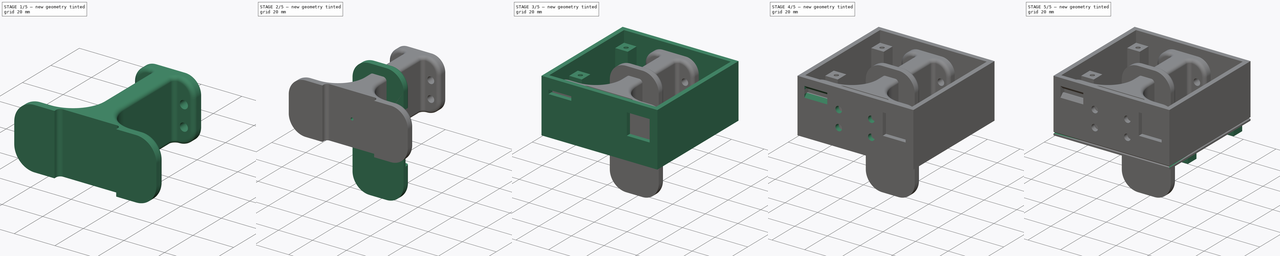
[diagram: build sequence overview — one tinted view per stage of 5, left to right]
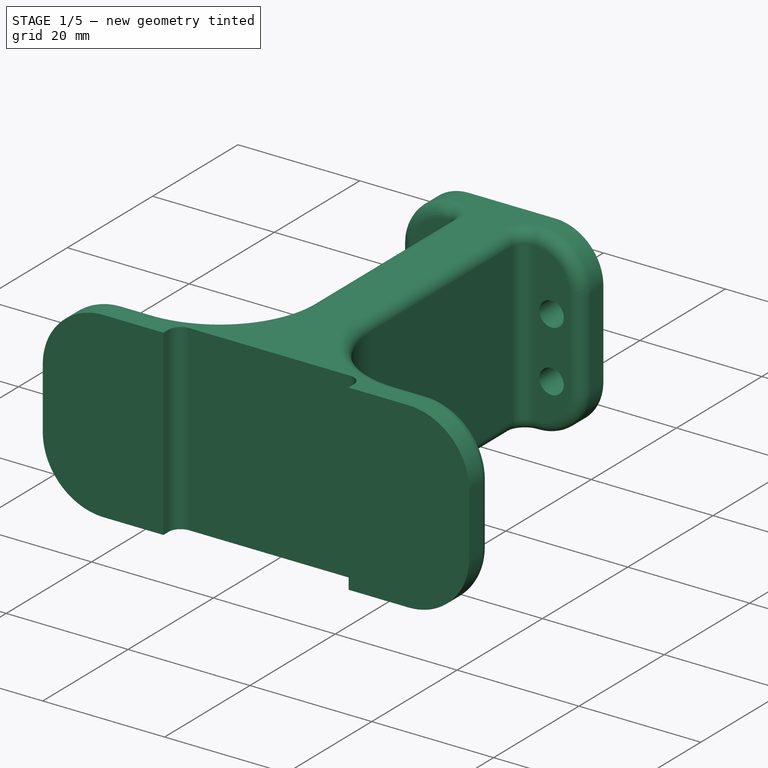
[diagram: stage 1 of 5 — iso view after this stage's code; geometry added in this stage tinted green]
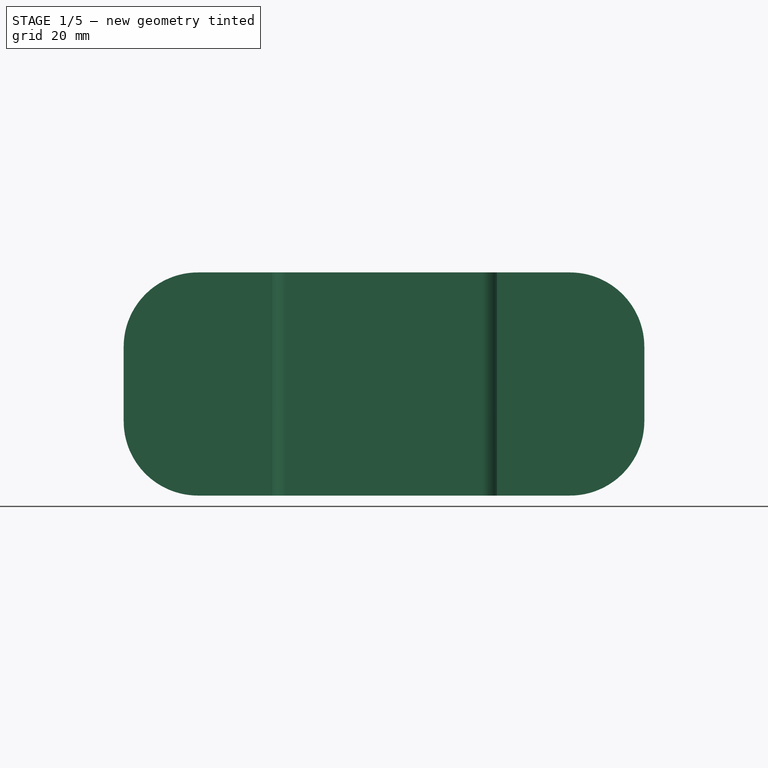
[diagram: stage 1 of 5 — front view after this stage's code; geometry added in this stage tinted green]
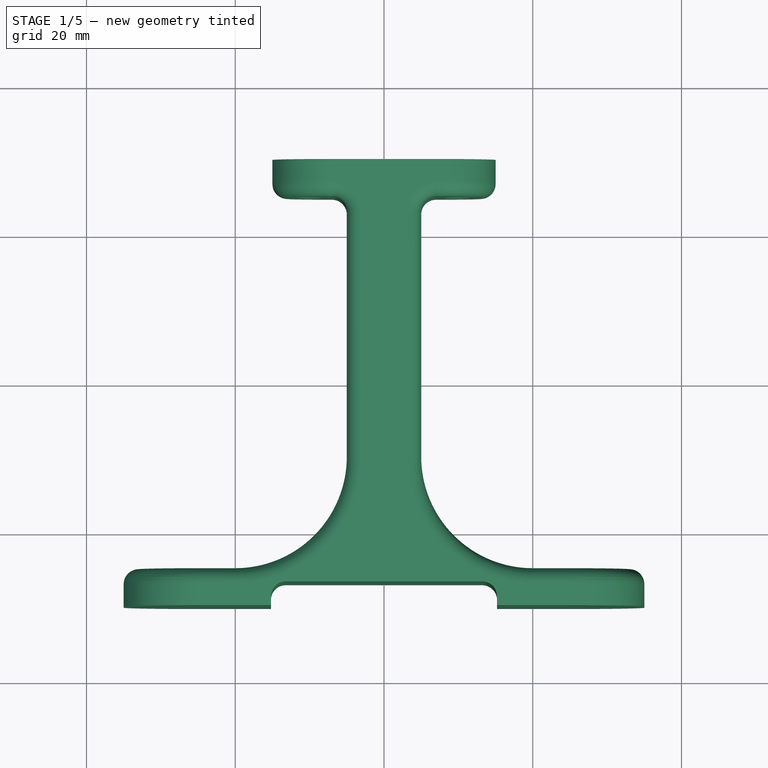
[diagram: stage 1 of 5 — top view after this stage's code; geometry added in this stage tinted green]
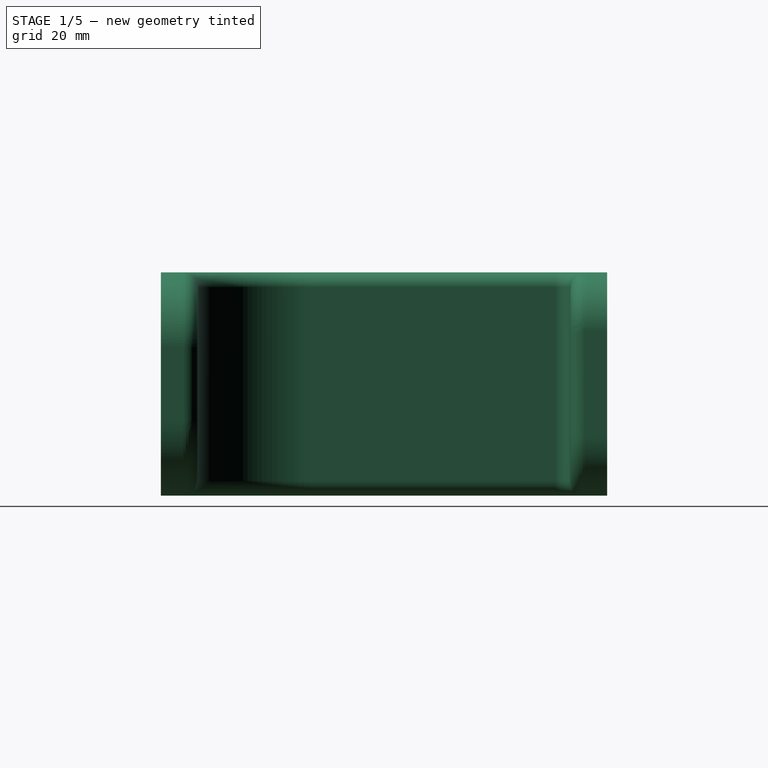
[diagram: stage 1 of 5 — right view after this stage's code; geometry added in this stage tinted green]
FCSTD DOCUMENT  (FreeCAD 0.18R4 (GitTag))
Label: BasicCase
License: All rights reserved
LicenseURL: http://en.wikipedia.org/wiki/All_rights_reserved
objects: Part::Feature×102, App::Part×87, PartDesign::Pocket×22, Sketcher::SketchObject×21, PartDesign::Fillet×10, PartDesign::Pad×7, PartDesign::Chamfer×4, PartDesign::Body×4
note: 199 computed .brp shape members not serialized (recipe doc carries the construction recipe); baked Part::Feature solids carry a one-line shape summary decoded from their .brp

FEATURE [PartDesign::Body] Body001  label="Back"
  Group = -> [Sketch003,Pad001,Sketch004,Pad002,Sketch005,Pad003,Sketch006,Pocket002,Pocket003,Pocket004,Pocket005,Pocket006,Sketch009,Pocket012,Chamfer001,Sketch010,Pocket013,Sketch011,Pocket014,Chamfer003,Sketch012,Pocket015]
  Origin = -> Origin088
  Placement = pos=(0,0,-25.94) rot=(0,0,1;0rad)
  Tip = -> Pocket015
FEATURE [Part::Feature] Part__Feature093  label="usb_cable"
  Placement = pos=(5.89,150.9,110.71) rot=(0.707107,0.707107,0;3.14159rad)
  shape: bbox 17.02 x 132.6 x 11.22 mm, 864 faces, 2 solids (baked)
FEATURE [Sketcher::SketchObject] Sketch013
  MapMode = 5
  Support = -> [XY_Plane089]
  sketch-geometry (12):
    g0: LineSegment StartX=-15 StartY=30 StartZ=0 EndX=15 EndY=30 EndZ=0
    g1: LineSegment StartX=15 StartY=30 StartZ=0 EndX=15 EndY=25 EndZ=0
    g2: LineSegment StartX=15 StartY=25 StartZ=0 EndX=5 EndY=25 EndZ=0
    g3: LineSegment StartX=5 StartY=25 StartZ=0 EndX=5 EndY=-25 EndZ=0
    g4: LineSegment StartX=5 StartY=-25 StartZ=0 EndX=35 EndY=-25 EndZ=0
    g5: LineSegment StartX=35 StartY=-25 StartZ=0 EndX=35 EndY=-30 EndZ=0
    g6: LineSegment StartX=35 StartY=-30 StartZ=0 EndX=-35 EndY=-30 EndZ=0
    g7: LineSegment StartX=-35 StartY=-30 StartZ=0 EndX=-35 EndY=-25 EndZ=0
    g8: LineSegment StartX=-35 StartY=-25 StartZ=0 EndX=-5 EndY=-25 EndZ=0
    g9: LineSegment StartX=-5 StartY=-25 StartZ=0 EndX=-5 EndY=25 EndZ=0
    g10: LineSegment StartX=-5 StartY=25 StartZ=0 EndX=-15 EndY=25 EndZ=0
    g11: LineSegment StartX=-15 StartY=25 StartZ=0 EndX=-15 EndY=30 EndZ=0
  constraints (36):
    c: Coincident(g0,g1)
    c: Coincident(g1,g2)
    c: Coincident(g2,g3)
    c: Coincident(g3,g4)
    c: Coincident(g4,g5)
    c: Coincident(g5,g6)
    c: Coincident(g6,g7)
    c: Coincident(g7,g8)
    c: Coincident(g8,g9)
    c: Coincident(g9,g10)
    c: Coincident(g10,g11)
    c: Coincident(g11,g0)
    c: Distance(g1) = 5
    c: Distance(g11) = 5
    c: Distance(g5) = 5
    c: Distance(g7) = 5
    c: Distance(g9,g2) = 10
    c: Distance(g2) = 10
    c: Distance(g10) = 10
    c: Distance(g0) = 30
    c: Distance(g9,g0) = 5
    c: Distance(g2,g0) = 5
    c: Distance(g0,g-2) = 15
    c: Distance(g9,g-2) = 5
    c: Distance(g8,g-2) = 5
    c: Distance(g8,g3) = 10
    c: Distance(g4) = 30
    c: Distance(g8) = 30
    c: Distance(g6) = 70
    c: Distance(g9) = 50
    c: Distance(g3) = 50
    c: Distance(g8,g6) = 5
    c: Distance(g3,g6) = 5
    c: Distance(g3,g-2) = 5
    c: Distance(g5,g-2) = 35
    c: Distance(g-1,g0) = 30
FEATURE [PartDesign::Pad] Pad005
  Length = 30
  Length2 = 100
  Profile = -> Sketch013
  Type = 0
FEATURE [Sketcher::SketchObject] Sketch014
  ExternalGeometry = -> [Pad005]
  MapMode = 5
  Placement = pos=(-3.1852e-07,25,0) rot=(1,0,0;1.5708rad)
  Support = -> [Pad005]
  sketch-geometry (4):
    g0: Circle CenterX=-10 CenterY=18.5 CenterZ=0 NormalX=0 NormalY=0 NormalZ=1 AngleXU=0 Radius=2
    g1: Circle CenterX=10 CenterY=18.5 CenterZ=0 NormalX=0 NormalY=0 NormalZ=1 AngleXU=0 Radius=2
    g2: Circle CenterX=10 CenterY=8.5 CenterZ=0 NormalX=0 NormalY=0 NormalZ=1 AngleXU=0 Radius=2
    g3: Circle CenterX=-10 CenterY=8.5 CenterZ=0 NormalX=0 NormalY=0 NormalZ=1 AngleXU=0 Radius=2
  constraints (12):
    c: Diameter(g1) = 4
    c: Diameter(g2) = 4
    c: Diameter(g0) = 4
    c: Diameter(g3) = 4
    c: Distance(g0,g1) = 20
    c: Distance(g1,g2) = 10
    c: Distance(g2,g3) = 20
    c: Distance(g3,g0) = 10
    c: Distance(g0,g-2) = 10
    c: Distance(g3,g-2) = 10
    c: Distance(g2,g-3) = 8.5
    c: Distance(g3,g-4) = 8.5
FEATURE [PartDesign::Pocket] Pocket016
  BaseFeature = -> Pad005
  Length = 5
  Length2 = 100
  Profile = -> Sketch014
  Type = 0
FEATURE [PartDesign::Fillet] Fillet001
  Base = -> Pocket016 [Edge41,Edge42]
  BaseFeature = -> Pocket016
  Radius = 2
FEATURE [PartDesign::Fillet] Fillet002
  Base = -> Fillet001 [Edge24,Edge48]
  BaseFeature = -> Fillet001
  Radius = 15
FEATURE [PartDesign::Fillet] Fillet003
  Base = -> Fillet002 [Edge33,Edge7,Edge45,Edge11]
  BaseFeature = -> Fillet002
  Radius = 7.9
FEATURE [PartDesign::Fillet] Fillet004
  Base = -> Fillet003 [Edge63,Edge15,Edge55,Edge11]
  BaseFeature = -> Fillet003
  Radius = 10
FEATURE [PartDesign::Fillet] Fillet005
  Base = -> Fillet004 [Edge33,Edge53]
  BaseFeature = -> Fillet004
  Radius = 2
FEATURE [Part::Feature] Part__Feature094  label="M3_10mm"
  Placement = pos=(-10.35,-30.79,-4.95) rot=(1,0,0;1.5708rad)
  shape: bbox 5.953 x 12.5 x 5.953 mm, 14 faces (baked)
FEATURE [Part::Feature] Part__Feature095  label="M3_10mm001"
  Placement = pos=(-10.35,-30.79,-14.97) rot=(1,0,0;1.5708rad)
  shape: bbox 5.953 x 12.5 x 5.953 mm, 14 faces (baked)
FEATURE [Part::Feature] Part__Feature096  label="M3_10mm002"
  Placement = pos=(9.78,-30.79,-14.97) rot=(1,0,0;1.5708rad)
  shape: bbox 5.953 x 12.5 x 5.953 mm, 14 faces (baked)
FEATURE [Part::Feature] Part__Feature097  label="M3_10mm003"
  Placement = pos=(9.7,-30.79,-4.95) rot=(1,0,0;1.5708rad)
  shape: bbox 5.953 x 12.5 x 5.953 mm, 14 faces (baked)
FEATURE [Part::Feature] Part__Feature098  label="M3_Nut"
  Placement = pos=(-10.35,-30.19,-4.94) rot=(1,0,0;1.5708rad)
  shape: bbox 5.937 x 2.5 x 5.575 mm, 21 faces (baked)
FEATURE [Part::Feature] Part__Feature099  label="M3_Nut001"
  Placement = pos=(9.71,-30.19,-4.94) rot=(1,0,0;1.5708rad)
  shape: bbox 5.937 x 2.5 x 5.575 mm, 21 faces (baked)
FEATURE [Part::Feature] Part__Feature100  label="M3_Nut002"
  Placement = pos=(9.79,-30.19,-14.93) rot=(1,0,0;1.5708rad)
  shape: bbox 5.937 x 2.5 x 5.575 mm, 21 faces (baked)
FEATURE [Part::Feature] Part__Feature101  label="M3_Nut003"
  Placement = pos=(-10.35,-30.19,-14.93) rot=(1,0,0;1.5708rad)
  shape: bbox 5.937 x 2.5 x 5.575 mm, 21 faces (baked)
FEATURE [Sketcher::SketchObject] Sketch015
  MapMode = 5
  Placement = pos=(3.82224e-07,-30,0) rot=(1,0,0;1.5708rad)
  Support = -> [Fillet005]
  sketch-geometry (4):
    g0: LineSegment StartX=-15.2 StartY=30 StartZ=0 EndX=15.2 EndY=30 EndZ=0
    g1: LineSegment StartX=15.2 StartY=30 StartZ=0 EndX=15.2 EndY=0 EndZ=0
    g2: LineSegment StartX=15.2 StartY=0 StartZ=0 EndX=-15.2 EndY=0 EndZ=0
    g3: LineSegment StartX=-15.2 StartY=0 StartZ=0 EndX=-15.2 EndY=30 EndZ=0
  constraints (12):
    c: Coincident(g0,g1)
    c: Coincident(g1,g2)
    c: Coincident(g2,g3)
    c: Coincident(g3,g0)
    c: Horizontal(g0)
    c: Horizontal(g2)
    c: Vertical(g1)
    c: Vertical(g3)
    c: Distance(g1) = 30
    c: Distance(g0,g-1) = 30
    c: Distance(g0) = 30.4
    c: Distance(g0,g-2) = 15.2
FEATURE [PartDesign::Pocket] Pocket017
  BaseFeature = -> Fillet005
  Length = 3.2
  Length2 = 100
  Profile = -> Sketch015
  Type = 0
FEATURE [PartDesign::Fillet] Fillet006
  Base = -> Pocket017 [Edge68,Edge66]
  BaseFeature = -> Pocket017
  Radius = 2
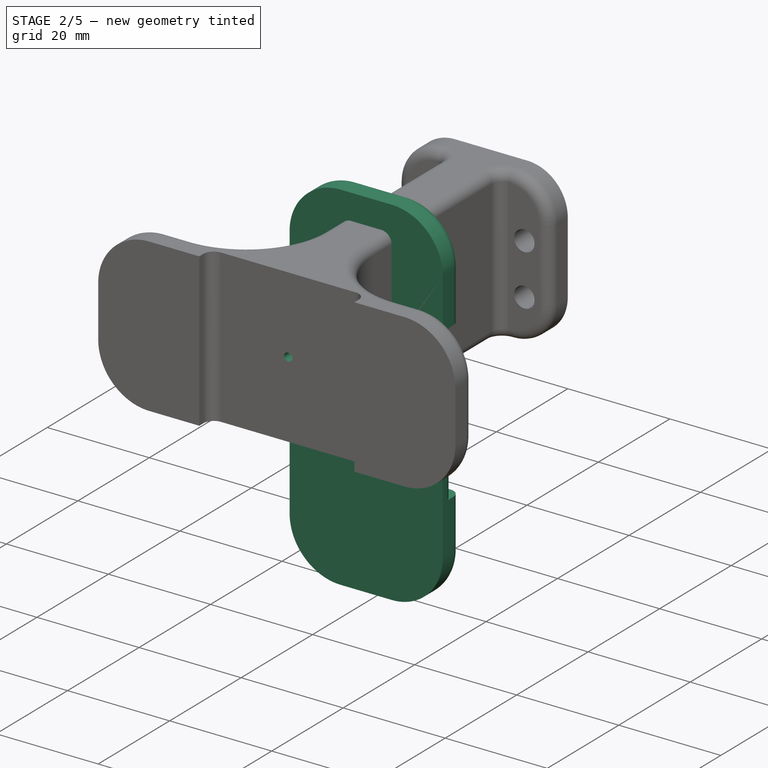
[diagram: stage 2 of 5 — iso view after this stage's code; geometry added in this stage tinted green]
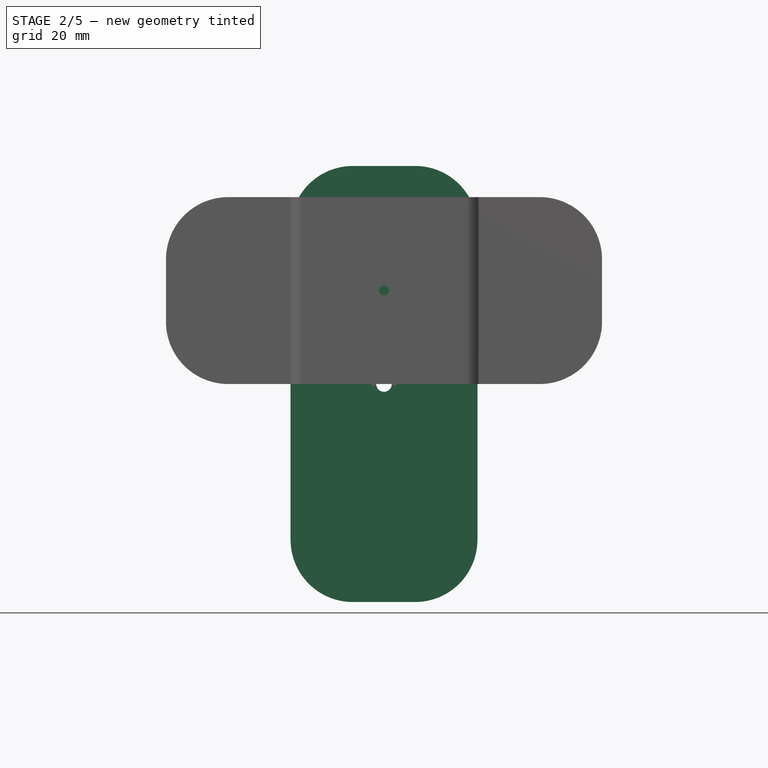
[diagram: stage 2 of 5 — front view after this stage's code; geometry added in this stage tinted green]
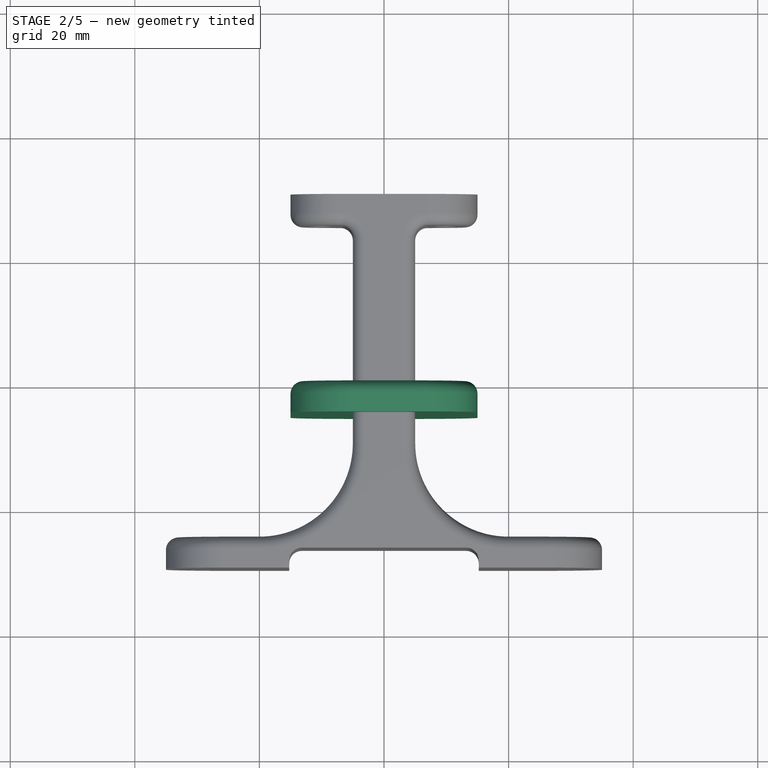
[diagram: stage 2 of 5 — top view after this stage's code; geometry added in this stage tinted green]
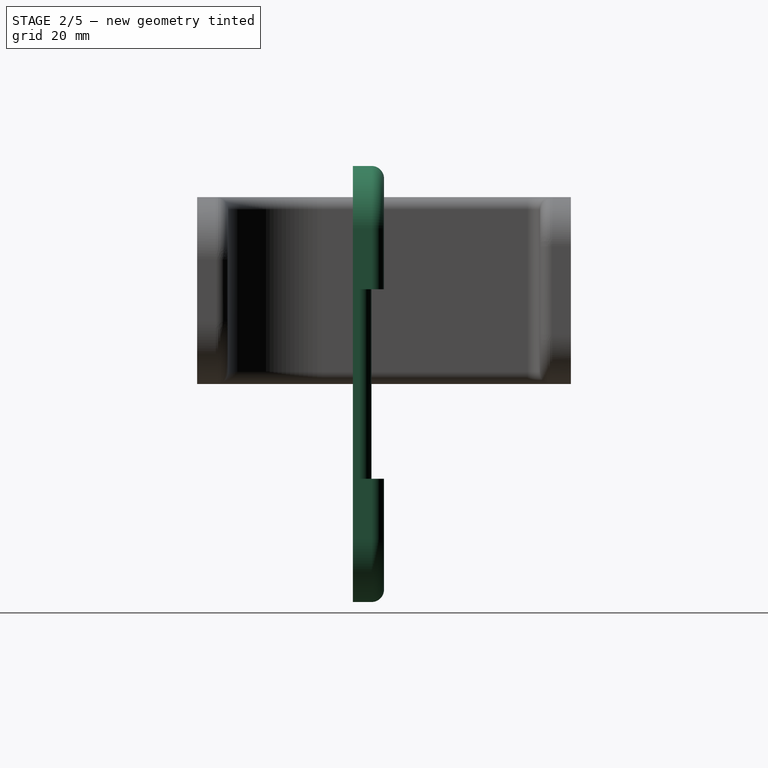
[diagram: stage 2 of 5 — right view after this stage's code; geometry added in this stage tinted green]
FEATURE [Sketcher::SketchObject] Sketch016
  MapMode = 5
  Placement = pos=(0,0,0) rot=(1,0,0;1.5708rad)
  Support = -> [XZ_Plane090]
  sketch-geometry (4):
    g0: LineSegment StartX=-15 StartY=35 StartZ=0 EndX=15 EndY=35 EndZ=0
    g1: LineSegment StartX=15 StartY=35 StartZ=0 EndX=15 EndY=-35 EndZ=0
    g2: LineSegment StartX=15 StartY=-35 StartZ=0 EndX=-15 EndY=-35 EndZ=0
    g3: LineSegment StartX=-15 StartY=-35 StartZ=0 EndX=-15 EndY=35 EndZ=0
  constraints (12):
    c: Coincident(g0,g1)
    c: Coincident(g1,g2)
    c: Coincident(g2,g3)
    c: Coincident(g3,g0)
    c: Horizontal(g0)
    c: Horizontal(g2)
    c: Vertical(g1)
    c: Vertical(g3)
    c: Distance(g0) = 30
    c: Distance(g1) = 70
    c: Distance(g0,g-2) = 15
    c: Distance(g0,g-1) = 35
FEATURE [PartDesign::Pad] Pad006
  Length = 5
  Length2 = 100
  Placement = pos=(0,0,0) rot=(1,0,0;1.5708rad)
  Profile = -> Sketch016
  Type = 0
FEATURE [PartDesign::Fillet] Fillet007
  Base = -> Pad006 [Edge5,Edge8,Edge2,Edge1]
  BaseFeature = -> Pad006
  Placement = pos=(0,0,0) rot=(1,0,0;1.5708rad)
  Radius = 10
FEATURE [Sketcher::SketchObject] Sketch017
  MapMode = 5
  Placement = pos=(0,0,0) rot=(-1,0,0;1.5708rad)
  Support = -> [Fillet007]
  sketch-geometry (4):
    g0: LineSegment StartX=-15 StartY=15.2 StartZ=0 EndX=15 EndY=15.2 EndZ=0
    g1: LineSegment StartX=15 StartY=15.2 StartZ=0 EndX=15 EndY=-15.2 EndZ=0
    g2: LineSegment StartX=15 StartY=-15.2 StartZ=0 EndX=-15 EndY=-15.2 EndZ=0
    g3: LineSegment StartX=-15 StartY=-15.2 StartZ=0 EndX=-15 EndY=15.2 EndZ=0
  constraints (12):
    c: Coincident(g0,g1)
    c: Coincident(g1,g2)
    c: Coincident(g2,g3)
    c: Coincident(g3,g0)
    c: Horizontal(g0)
    c: Horizontal(g2)
    c: Vertical(g1)
    c: Vertical(g3)
    c: Distance(g0) = 30
    c: Distance(g3) = 30.4
    c: Distance(g0,g-1) = 15.2
    c: Distance(g0,g-2) = 15
FEATURE [PartDesign::Pocket] Pocket018
  BaseFeature = -> Fillet007
  Length = 2
  Length2 = 100
  Placement = pos=(0,0,0) rot=(1,0,0;1.5708rad)
  Profile = -> Sketch017
  Type = 0
FEATURE [PartDesign::Fillet] Fillet008
  Base = -> Pocket018 [Edge26,Edge21]
  BaseFeature = -> Pocket018
  Placement = pos=(0,0,0) rot=(1,0,0;1.5708rad)
  Radius = 2
FEATURE [PartDesign::Fillet] Fillet009
  Base = -> Fillet008 [Edge39,Edge20]
  BaseFeature = -> Fillet008
  Placement = pos=(0,0,0) rot=(1,0,0;1.5708rad)
  Radius = 2
FEATURE [Sketcher::SketchObject] Sketch018
  MapMode = 5
  Placement = pos=(0,-5,5.6e-15) rot=(1,0,0;1.5708rad)
  Support = -> [Fillet009]
  sketch-geometry (1):
    g0: Circle CenterX=0 CenterY=0 CenterZ=0 NormalX=0 NormalY=0 NormalZ=1 AngleXU=0 Radius=1.25
  constraints (2):
    c: Coincident(g0,g-1)
    c: Diameter(g0) = 2.5
FEATURE [PartDesign::Pocket] Pocket019
  BaseFeature = -> Fillet009
  Length = 9
  Length2 = 100
  Placement = pos=(0,0,0) rot=(1,0,0;1.5708rad)
  Profile = -> Sketch018
  Type = 0
FEATURE [Sketcher::SketchObject] Sketch019
  MapMode = 5
  Placement = pos=(0,-5,7.8e-15) rot=(1,0,0;1.5708rad)
  Support = -> [Pocket019]
  sketch-geometry (1):
    g0: Circle CenterX=0 CenterY=0 CenterZ=0 NormalX=0 NormalY=0 NormalZ=1 AngleXU=0 Radius=2
  constraints (2):
    c: Coincident(g0,g-1)
    c: Diameter(g0) = 4
FEATURE [PartDesign::Pocket] Pocket020
  BaseFeature = -> Pocket019
  Length = 1.5
  Length2 = 100
  Placement = pos=(0,0,0) rot=(1,0,0;1.5708rad)
  Profile = -> Sketch019
  Type = 0
FEATURE [PartDesign::Body] Body003  label="Stand_CrossBar"
  Group = -> [Sketch016,Pad006,Fillet007,Sketch017,Pocket018,Fillet008,Fillet009,Sketch018,Pocket019,Sketch019,Pocket020]
  Origin = -> Origin090
  Placement = pos=(-0.25,-90.79,-8.4) rot=(0,0,1;0rad)
  Tip = -> Pocket020
FEATURE [Sketcher::SketchObject] Sketch020
  ExternalGeometry = -> [Fillet006]
  MapMode = 5
  Placement = pos=(3.41453e-07,-26.8,6.3e-15) rot=(1,0,0;1.5708rad)
  Support = -> [Fillet006]
  sketch-geometry (1):
    g0: Circle CenterX=-3.82224e-07 CenterY=15 CenterZ=0 NormalX=0 NormalY=0 NormalZ=1 AngleXU=0 Radius=0.8
  constraints (3):
    c: Diameter(g0) = 1.6
    c: Distance(g0,g-1) = 15
    c: Distance(g0,g-3) = 35
FEATURE [PartDesign::Pocket] Pocket021
  BaseFeature = -> Fillet006
  Length = 3
  Length2 = 100
  Profile = -> Sketch020
  Type = 0
FEATURE [PartDesign::Body] Body002  label="Stand"
  Group = -> [Sketch013,Pad005,Sketch014,Pocket016,Fillet001,Fillet002,Fillet003,Fillet004,Fillet005,Sketch015,Pocket017,Fillet006,Sketch020,Pocket021]
  Origin = -> Origin089
  Placement = pos=(-0.28,-65.8,-23.42) rot=(0,0,1;0rad)
  Tip = -> Pocket021
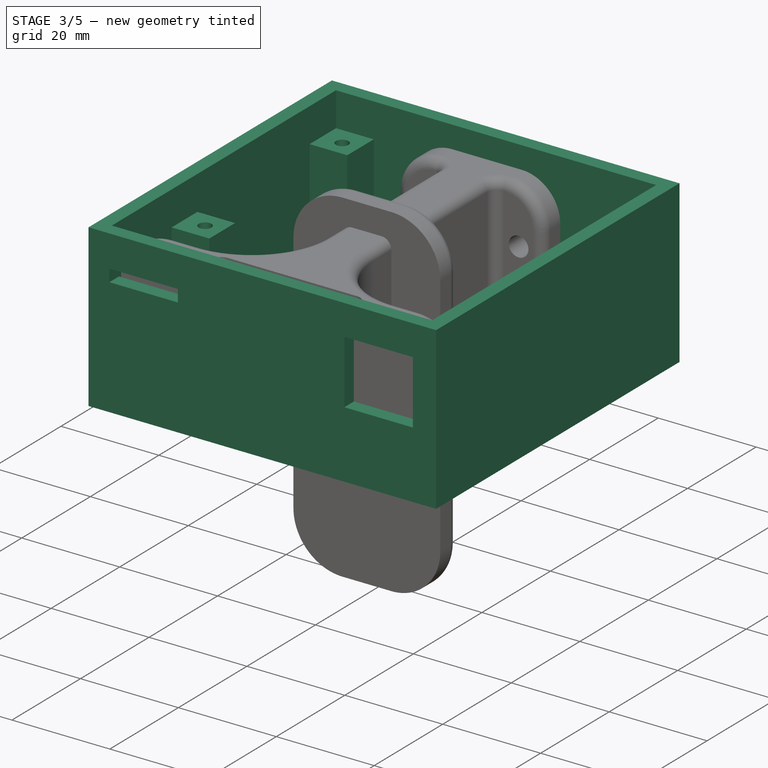
[diagram: stage 3 of 5 — iso view after this stage's code; geometry added in this stage tinted green]
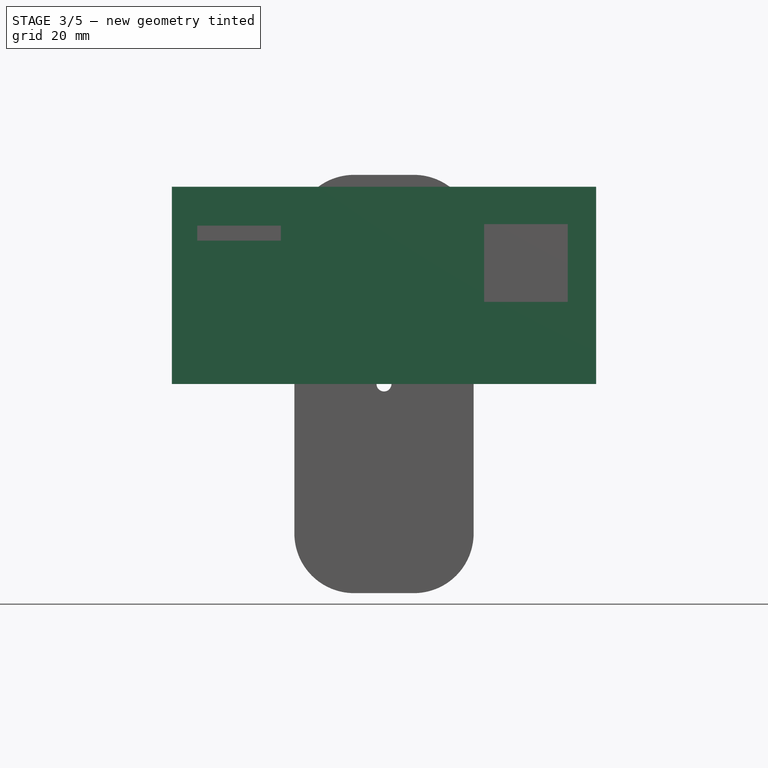
[diagram: stage 3 of 5 — front view after this stage's code; geometry added in this stage tinted green]
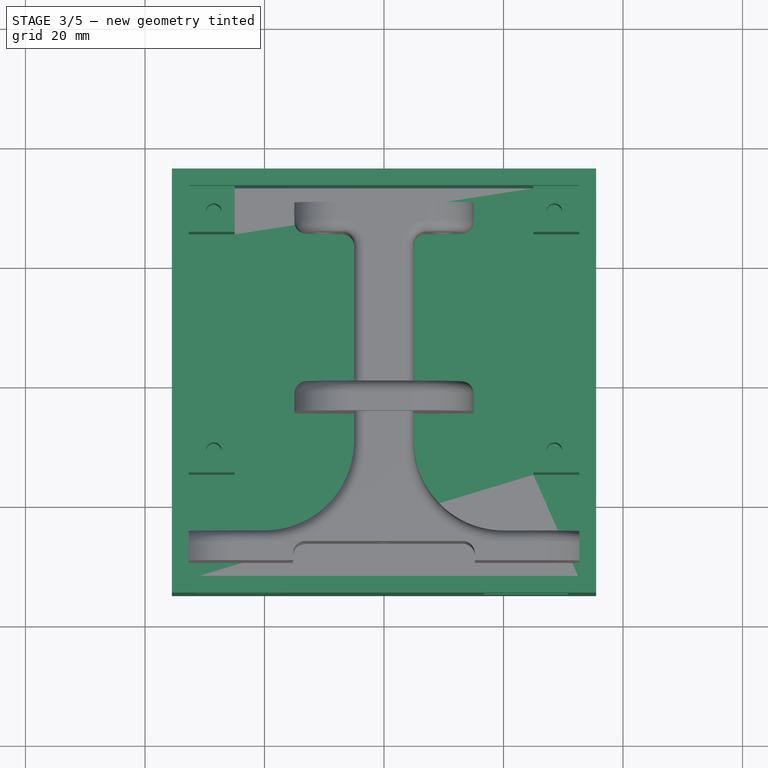
[diagram: stage 3 of 5 — top view after this stage's code; geometry added in this stage tinted green]
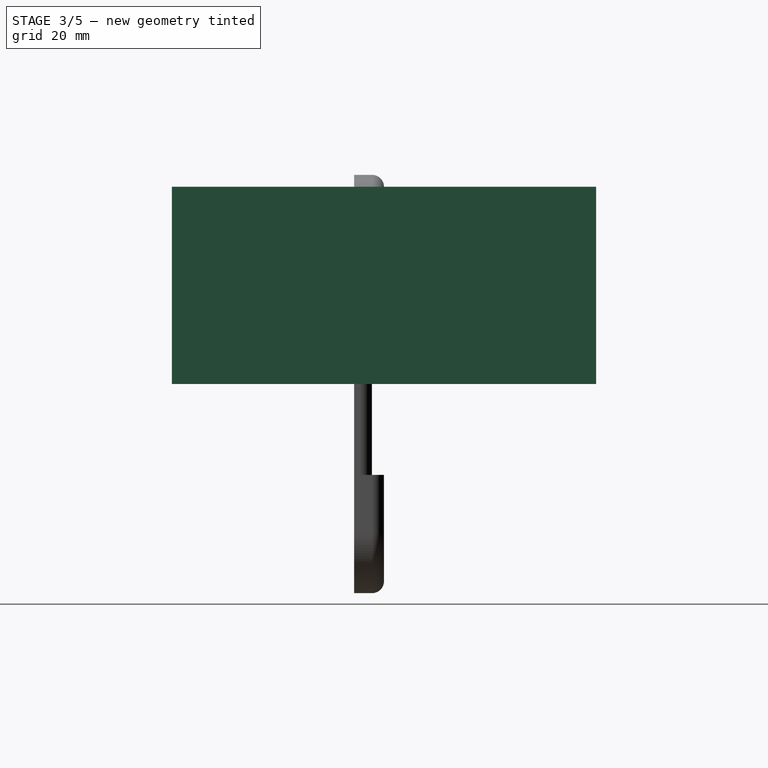
[diagram: stage 3 of 5 — right view after this stage's code; geometry added in this stage tinted green]
FEATURE [Sketcher::SketchObject] Sketch003
  MapMode = 5
  Support = -> [XY_Plane088]
  sketch-geometry (4):
    g0: LineSegment StartX=-35.5 StartY=35.5 StartZ=0 EndX=35.5 EndY=35.5 EndZ=0
    g1: LineSegment StartX=35.5 StartY=35.5 StartZ=0 EndX=35.5 EndY=-35.5 EndZ=0
    g2: LineSegment StartX=35.5 StartY=-35.5 StartZ=0 EndX=-35.5 EndY=-35.5 EndZ=0
    g3: LineSegment StartX=-35.5 StartY=-35.5 StartZ=0 EndX=-35.5 EndY=35.5 EndZ=0
  constraints (12):
    c: Coincident(g0,g1)
    c: Coincident(g1,g2)
    c: Coincident(g2,g3)
    c: Coincident(g3,g0)
    c: Horizontal(g0)
    c: Horizontal(g2)
    c: Vertical(g1)
    c: Vertical(g3)
    c: Distance(g0) = 71
    c: Distance(g1) = 71
    c: Distance(g0,g-2) = 35.5
    c: Distance(g0,g-1) = 35.5
FEATURE [PartDesign::Pad] Pad001
  Length = 3
  Length2 = 100
  Profile = -> Sketch003
  Type = 0
FEATURE [Sketcher::SketchObject] Sketch004
  ExternalGeometry = -> [Pad001]
  MapMode = 5
  Placement = pos=(0,0,3) rot=(0,0,1;0rad)
  Support = -> [Pad001]
  sketch-geometry (8):
    g0: LineSegment StartX=-35.5 StartY=35.5 StartZ=0 EndX=35.5 EndY=35.5 EndZ=0
    g1: LineSegment StartX=35.5 StartY=35.5 StartZ=0 EndX=35.5 EndY=-35.5 EndZ=0
    g2: LineSegment StartX=35.5 StartY=-35.5 StartZ=0 EndX=-35.5 EndY=-35.5 EndZ=0
    g3: LineSegment StartX=-35.5 StartY=-35.5 StartZ=0 EndX=-35.5 EndY=35.5 EndZ=0
    g4: LineSegment StartX=-32.5 StartY=32.5 StartZ=0 EndX=32.5 EndY=32.5 EndZ=0
    g5: LineSegment StartX=32.5 StartY=32.5 StartZ=0 EndX=32.5 EndY=-32.5 EndZ=0
    g6: LineSegment StartX=32.5 StartY=-32.5 StartZ=0 EndX=-32.5 EndY=-32.5 EndZ=0
    g7: LineSegment StartX=-32.5 StartY=-32.5 StartZ=0 EndX=-32.5 EndY=32.5 EndZ=0
  constraints (23):
    c: Coincident(g0,g1)
    c: Coincident(g1,g2)
    c: Coincident(g2,g3)
    c: Coincident(g3,g0)
    c: Horizontal(g0)
    c: Horizontal(g2)
    c: Vertical(g1)
    c: Vertical(g3)
    c: Coincident(g0,g-4)
    c: Distance(g0) = 71
    c: Distance(g1) = 71
    c: Coincident(g4,g5)
    c: Coincident(g5,g6)
    c: Coincident(g6,g7)
    c: Coincident(g7,g4)
    c: Horizontal(g4)
    c: Horizontal(g6)
    c: Vertical(g5)
    c: Vertical(g7)
    c: Distance(g4,g1) = 3
    c: Distance(g4,g0) = 3
    c: Distance(g6,g2) = 3
    c: Distance(g6,g3) = 3
FEATURE [PartDesign::Pad] Pad002
  BaseFeature = -> Pad001
  Length = 30
  Length2 = 100
  Profile = -> Sketch004
  Type = 0
FEATURE [Sketcher::SketchObject] Sketch005
  ExternalGeometry = -> [Pad002]
  MapMode = 5
  Placement = pos=(0,0,3) rot=(0,0,1;0rad)
  Support = -> [Pad002]
  sketch-geometry (16):
    g0: LineSegment StartX=-32.5 StartY=32.5 StartZ=0 EndX=-25 EndY=32.5 EndZ=0
    g1: LineSegment StartX=-25 StartY=32.5 StartZ=0 EndX=-25 EndY=25 EndZ=0
    g2: LineSegment StartX=-25 StartY=25 StartZ=0 EndX=-32.5 EndY=25 EndZ=0
    g3: LineSegment StartX=-32.5 StartY=25 StartZ=0 EndX=-32.5 EndY=32.5 EndZ=0
    g4: LineSegment StartX=25 StartY=32.5 StartZ=0 EndX=32.5 EndY=32.5 EndZ=0
    g5: LineSegment StartX=32.5 StartY=32.5 StartZ=0 EndX=32.5 EndY=25 EndZ=0
    g6: LineSegment StartX=32.5 StartY=25 StartZ=0 EndX=25 EndY=25 EndZ=0
    g7: LineSegment StartX=25 StartY=25 StartZ=0 EndX=25 EndY=32.5 EndZ=0
    g8: LineSegment StartX=25 StartY=-7.75 StartZ=0 EndX=32.5 EndY=-7.75 EndZ=0
    g9: LineSegment StartX=32.5 StartY=-7.75 StartZ=0 EndX=32.5 EndY=-15.25 EndZ=0
    g10: LineSegment StartX=32.5 StartY=-15.25 StartZ=0 EndX=25 EndY=-15.25 EndZ=0
    g11: LineSegment StartX=25 StartY=-15.25 StartZ=0 EndX=25 EndY=-7.75 EndZ=0
    g12: LineSegment StartX=-32.5 StartY=-7.75 StartZ=0 EndX=-25 EndY=-7.75 EndZ=0
    g13: LineSegment StartX=-25 StartY=-7.75 StartZ=0 EndX=-25 EndY=-15.25 EndZ=0
    g14: LineSegment StartX=-25 StartY=-15.25 StartZ=0 EndX=-32.5 EndY=-15.25 EndZ=0
    g15: LineSegment StartX=-32.5 StartY=-15.25 StartZ=0 EndX=-32.5 EndY=-7.75 EndZ=0
  constraints (46):
    c: Coincident(g0,g1)
    c: Coincident(g1,g2)
    c: Coincident(g2,g3)
    c: Coincident(g3,g0)
    c: Horizontal(g0)
    c: Horizontal(g2)
    c: Vertical(g1)
    c: Vertical(g3)
    c: Coincident(g4,g5)
    c: Coincident(g5,g6)
    c: Coincident(g6,g7)
    c: Coincident(g7,g4)
    c: Horizontal(g4)
    c: Horizontal(g6)
    c: Vertical(g5)
    c: Vertical(g7)
    c: Coincident(g8,g9)
    c: Coincident(g9,g10)
    c: Coincident(g10,g11)
    c: Coincident(g11,g8)
    c: Horizontal(g8)
    c: Horizontal(g10)
    c: Vertical(g9)
    c: Vertical(g11)
    c: Coincident(g12,g13)
    c: Coincident(g13,g14)
    c: Coincident(g14,g15)
    c: Coincident(g15,g12)
    c: Horizontal(g12)
    c: Horizontal(g14)
    c: Vertical(g13)
    c: Vertical(g15)
    c: Distance(g6) = 7.5
    c: Distance(g7) = 7.5
    c: Coincident(g4,g-4)
    c: Coincident(g0,g-6)
    c: Distance(g1) = 7.5
    c: Distance(g2) = 7.5
    c: Distance(g13) = 7.5
    c: Distance(g14) = 7.5
    c: Distance(g10) = 7.5
    c: Distance(g11) = 7.5
    c: Distance(g8,g-4) = 7.5
    c: Distance(g12,g-6) = 7.5
    c: Distance(g13,g-5) = 17.25
    c: Distance(g10,g-5) = 17.25
FEATURE [PartDesign::Pad] Pad003
  BaseFeature = -> Pad002
  Length = 23
  Length2 = 100
  Profile = -> Sketch005
  Type = 0
FEATURE [Sketcher::SketchObject] Sketch006
  ExternalGeometry = -> [Pad003]
  MapMode = 5
  Placement = pos=(0,0,26) rot=(0,0,1;0rad)
  Support = -> [Pad003]
  sketch-geometry (4):
    g0: Circle CenterX=-28.5 CenterY=28.5 CenterZ=0 NormalX=0 NormalY=0 NormalZ=1 AngleXU=0 Radius=1.3
    g1: Circle CenterX=28.5 CenterY=28.5 CenterZ=0 NormalX=0 NormalY=0 NormalZ=1 AngleXU=0 Radius=1.3
    g2: Circle CenterX=28.5 CenterY=-11.5 CenterZ=0 NormalX=0 NormalY=0 NormalZ=1 AngleXU=0 Radius=1.3
    g3: Circle CenterX=-28.5 CenterY=-11.5 CenterZ=0 NormalX=0 NormalY=0 NormalZ=1 AngleXU=0 Radius=1.3
  constraints (12):
    c: Diameter(g1) = 2.6
    c: Diameter(g2) = 2.6
    c: Diameter(g3) = 2.6
    c: Diameter(g0) = 2.6
    c: Distance(g0,g-3) = 3.5
    c: Distance(g0,g-4) = 3.5
    c: Distance(g3,g-5) = 3.75
    c: Distance(g3,g-6) = 3.5
    c: Distance(g1,g-9) = 3.5
    c: Distance(g1,g-10) = 3.5
    c: Distance(g2,g-7) = 3.75
    c: Distance(g2,g-8) = 3.5
FEATURE [PartDesign::Pocket] Pocket002
  BaseFeature = -> Pad003
  Length = 16
  Length2 = 100
  Profile = -> Sketch006
  Type = 0
FEATURE [PartDesign::Pocket] Pocket003
  BaseFeature = -> Pocket002
  Length = 0.2
  Length2 = 100
  Profile = -> Pocket002 [Face11]
  Type = 0
FEATURE [PartDesign::Pocket] Pocket004
  BaseFeature = -> Pocket003
  Length = 0.2
  Length2 = 100
  Profile = -> Pocket003 [Face15]
  Refine = true
  Type = 0
FEATURE [PartDesign::Pocket] Pocket005
  BaseFeature = -> Pocket004
  Length = 0.2
  Length2 = 100
  Profile = -> Pocket004 [Face2]
  Type = 0
FEATURE [PartDesign::Pocket] Pocket006
  BaseFeature = -> Pocket005
  Length = 0.2
  Length2 = 100
  Profile = -> Pocket005 [Face10]
  Refine = true
  Type = 0
FEATURE [Part::Feature] Part__Feature087  label="M3_25mm"
  Placement = pos=(-28.53,-11.46,-14.8) rot=(0,0,1;0rad)
  shape: bbox 5.953 x 5.953 x 27.5 mm, 14 faces (baked)
FEATURE [Part::Feature] Part__Feature088  label="M3_25mm001"
  Placement = pos=(-28.53,28.5,-14.8) rot=(0,0,1;0rad)
  shape: bbox 5.953 x 5.953 x 27.5 mm, 14 faces (baked)
FEATURE [Part::Feature] Part__Feature089  label="M3_25mm002"
  Placement = pos=(28.48,28.5,-14.8) rot=(0,0,1;0rad)
  shape: bbox 5.953 x 5.953 x 27.5 mm, 14 faces (baked)
FEATURE [Part::Feature] Part__Feature090  label="M3_25mm003"
  Placement = pos=(28.48,-11.43,-14.8) rot=(0,0,1;0rad)
  shape: bbox 5.953 x 5.953 x 27.5 mm, 14 faces (baked)
FEATURE [Sketcher::SketchObject] Sketch009
  ExternalGeometry = -> [Pocket006]
  MapMode = 5
  Placement = pos=(0,-35.5,0) rot=(1,0,0;1.5708rad)
  Support = -> [Pocket006]
  sketch-geometry (8):
    g0: LineSegment StartX=-31.25 StartY=26.5 StartZ=0 EndX=-17.25 EndY=26.5 EndZ=0
    g1: LineSegment StartX=-17.25 StartY=26.5 StartZ=0 EndX=-17.25 EndY=24 EndZ=0
    g2: LineSegment StartX=-17.25 StartY=24 StartZ=0 EndX=-31.25 EndY=24 EndZ=0
    g3: LineSegment StartX=-31.25 StartY=24 StartZ=0 EndX=-31.25 EndY=26.5 EndZ=0
    g4: LineSegment StartX=16.75 StartY=26.75 StartZ=0 EndX=30.75 EndY=26.75 EndZ=0
    g5: LineSegment StartX=30.75 StartY=26.75 StartZ=0 EndX=30.75 EndY=13.75 EndZ=0
    g6: LineSegment StartX=30.75 StartY=13.75 StartZ=0 EndX=16.75 EndY=13.75 EndZ=0
    g7: LineSegment StartX=16.75 StartY=13.75 StartZ=0 EndX=16.75 EndY=26.75 EndZ=0
  constraints (24):
    c: Coincident(g0,g1)
    c: Coincident(g1,g2)
    c: Coincident(g2,g3)
    c: Coincident(g3,g0)
    c: Horizontal(g0)
    c: Horizontal(g2)
    c: Vertical(g1)
    c: Vertical(g3)
    c: Distance(g1) = 2.5
    c: Distance(g0,g-3) = 6.5
    c: Distance(g2,g-4) = 4.25
    c: Coincident(g4,g5)
    c: Coincident(g5,g6)
    c: Coincident(g6,g7)
    c: Coincident(g7,g4)
    c: Horizontal(g4)
    c: Horizontal(g6)
    c: Vertical(g5)
    c: Vertical(g7)
    c: Distance(g4) = 14
    c: Distance(g5) = 13
    c: Distance(g4,g-3) = 6.25
    c: Distance(g4,g-5) = 4.75
    c: Distance(g0) = 14
FEATURE [PartDesign::Pocket] Pocket012
  BaseFeature = -> Pocket006
  Length = 5
  Length2 = 100
  Profile = -> Sketch009
  Type = 0
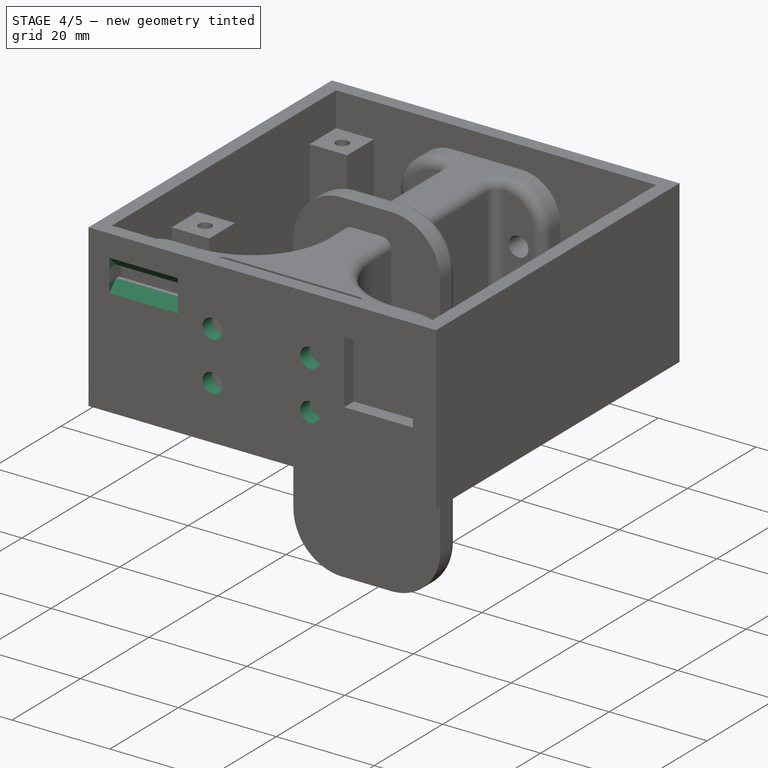
[diagram: stage 4 of 5 — iso view after this stage's code; geometry added in this stage tinted green]
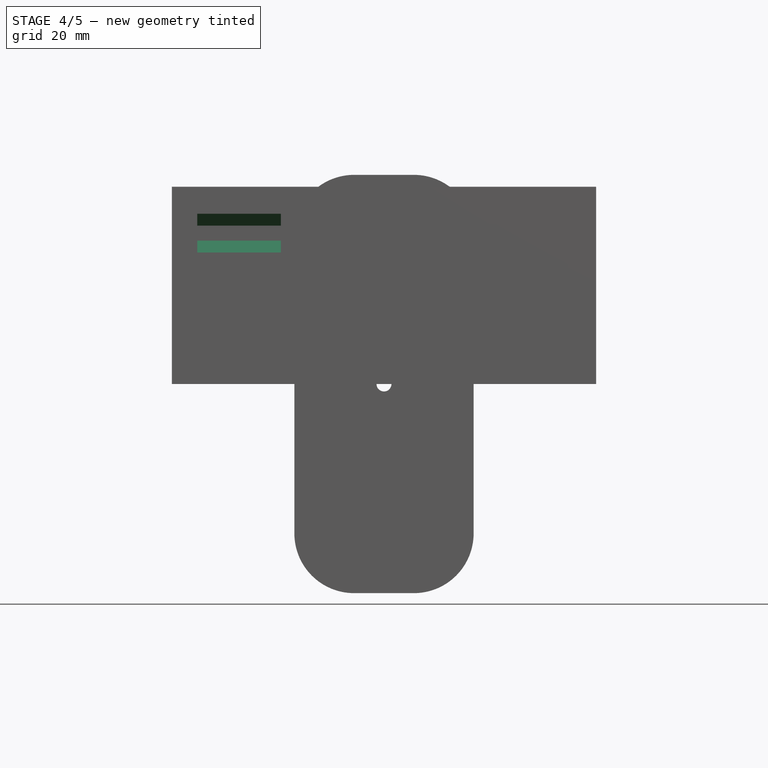
[diagram: stage 4 of 5 — front view after this stage's code; geometry added in this stage tinted green]
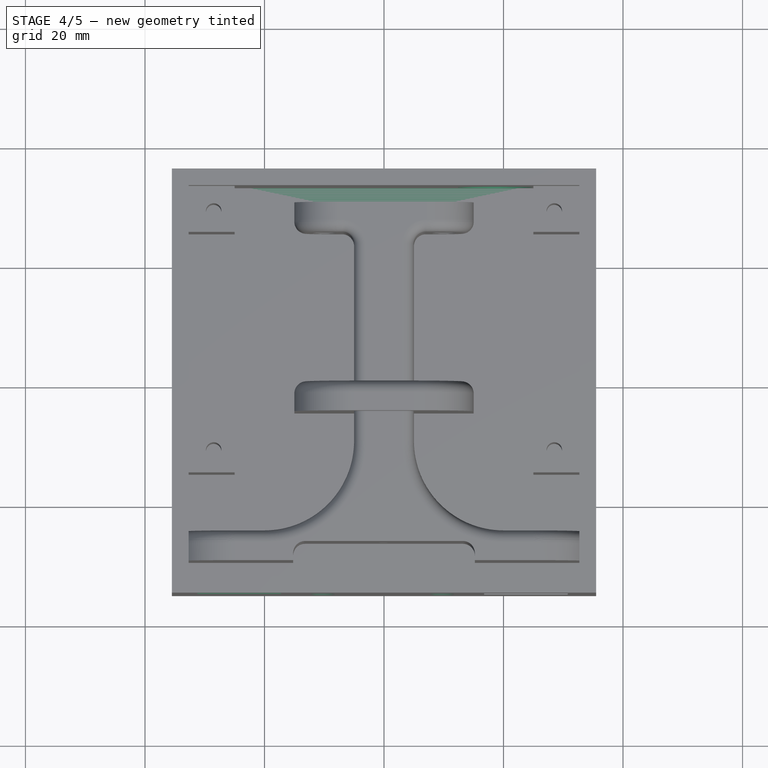
[diagram: stage 4 of 5 — top view after this stage's code; geometry added in this stage tinted green]
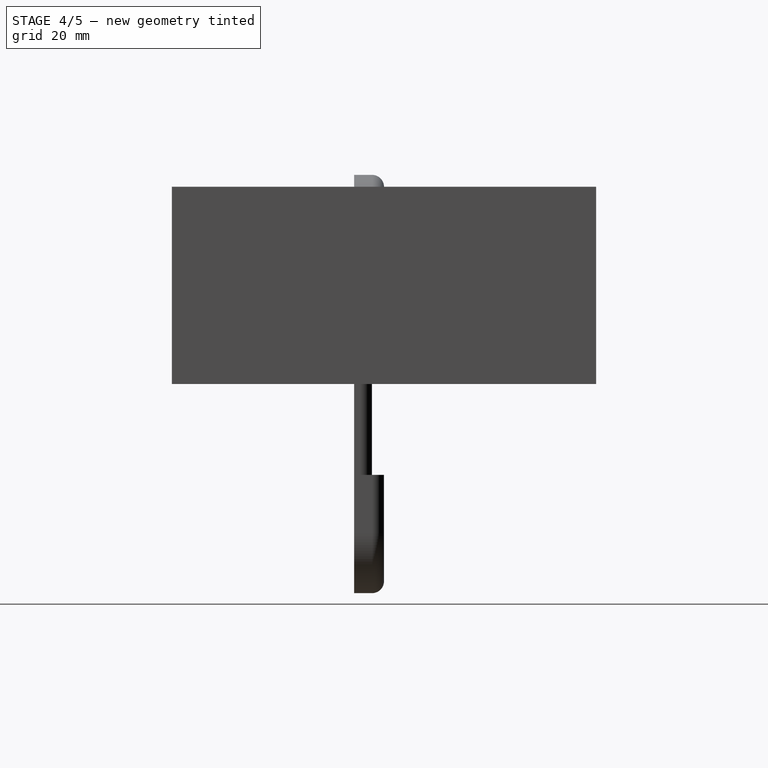
[diagram: stage 4 of 5 — right view after this stage's code; geometry added in this stage tinted green]
FEATURE [Part::Feature] Part__Feature  label="SOLID"
  shape: bbox 3.4 x 3.8 x 10.8 mm, 16 faces (baked)
FEATURE [App::Part] LED_D3_0mm  label="LED_D3.0mm"
  Group = -> [Part__Feature]
  Origin = -> Origin001
  Placement = pos=(-15.736,23.38,2.95) rot=(1,0,0;3.14159rad)
FEATURE [Part::Feature] Part__Feature001  label="COMPOUND"
  shape: bbox 3.988 x 9.5 x 10.21 mm, 124 faces, 4 solids (baked)
FEATURE [App::Part] SS12SBP2
  Group = -> [Part__Feature001]
  Origin = -> Origin002
  Placement = pos=(23.808,-11.64,-0.55) rot=(0.57735,0.57735,-0.57735;4.18879rad)
FEATURE [Part::Feature] Part__Feature002  label="COMPOUND001"
  shape: bbox 3 x 2.552 x 1.046 mm, 59 faces, 5 solids (baked)
FEATURE [App::Part] TRAN_SS8050_G_CIP  label="TRAN_SS8050-G_CIP"
  Group = -> [Part__Feature002]
  Origin = -> Origin003
  Placement = pos=(16.268,-13.958,1.65) rot=(0,0,1;1.5708rad)
FEATURE [Part::Feature] Part__Feature003  label="COMPOUND002"
  shape: bbox 3 x 2.552 x 1.046 mm, 59 faces, 5 solids (baked)
FEATURE [App::Part] TRAN_SS8050_G_CIP001  label="TRAN_SS8050-G_CIP001"
  Group = -> [Part__Feature003]
  Origin = -> Origin004
  Placement = pos=(24.396,-13.958,1.65) rot=(0,0,-1;1.5708rad)
FEATURE [Part::Feature] Part__Feature004  label="COMPOUND003"
  shape: bbox 3.05 x 2.644 x 1.122 mm, 59 faces, 5 solids (baked)
FEATURE [App::Part] SM712_TCT_SOT23_SEM  label="SM712-TCT_SOT23_SEM"
  Group = -> [Part__Feature004]
  Origin = -> Origin005
  Placement = pos=(13.22,20.84,1.65) rot=(0,0,1;1.5708rad)
FEATURE [Part::Feature] Part__Feature005  label="COMPOUND004"
  shape: bbox 9.987 x 13.37 x 4.884 mm, 59 faces, 6 solids (baked)
FEATURE [App::Part] D2PAK3_ONS
  Group = -> [Part__Feature005]
  Origin = -> Origin006
  Placement = pos=(-2.528,5.092,-0.05) rot=(-0.707107,0.707107,0;3.14159rad)
FEATURE [Part::Feature] Part__Feature006  label="COMPOUND005"
  shape: bbox 9.987 x 13.37 x 4.884 mm, 59 faces, 6 solids (baked)
FEATURE [App::Part] D2PAK3_ONS001
  Group = -> [Part__Feature006]
  Origin = -> Origin007
  Placement = pos=(-2.528,5.092,1.65) rot=(0,0,1;1.5708rad)
FEATURE [Part::Feature] Part__Feature007  label="COMPOUND006"
  shape: bbox 2.796 x 2.898 x 1.3 mm, 87 faces, 7 solids (baked)
FEATURE [App::Part] XC6220B331MR_G_SOT_25_TOR  label="XC6220B331MR-G_SOT-25_TOR"
  Group = -> [Part__Feature007]
  Origin = -> Origin008
  Placement = pos=(-29.96,19.062,1.65) rot=(0,0,-1;1.5708rad)
FEATURE [Part::Feature] Part__Feature008  label="COMPOUND007"
  shape: bbox 5.9 x 9.4 x 4.5 mm, 133 faces, 3 solids (baked)
FEATURE [App::Part] B2B_PH_K_S_LF__SN___3DModel_STEP_56544  label="B2B-PH-K-S(LF)(SN)--3DModel-STEP-56544"
  Group = -> [Part__Feature008]
  Origin = -> Origin009
  Placement = pos=(17.808,-3.028,-3.05) rot=(-1,0,0;1.5708rad)
FEATURE [Part::Feature] Part__Feature009  label="COMPOUND008"
  shape: bbox 5.9 x 9.4 x 4.5 mm, 133 faces, 3 solids (baked)
FEATURE [App::Part] B2B_PH_K_S_LF__SN___3DModel_STEP_56544001  label="B2B-PH-K-S(LF)(SN)--3DModel-STEP-56545"
  Group = -> [Part__Feature009]
  Origin = -> Origin010
  Placement = pos=(28.722,5.33,-3.05) rot=(-0.57735,0.57735,-0.57735;2.0944rad)
FEATURE [Part::Feature] Part__Feature010  label="COMPOUND009"
  shape: bbox 5.9 x 9.4 x 4.5 mm, 133 faces, 3 solids (baked)
FEATURE [App::Part] B2B_PH_K_S_LF__SN___3DModel_STEP_56544002  label="B2B-PH-K-S(LF)(SN)--3DModel-STEP-56546"
  Group = -> [Part__Feature010]
  Origin = -> Origin011
  Placement = pos=(-21.054,28.722,-3.05) rot=(-1,0,0;1.5708rad)
FEATURE [Part::Feature] Part__Feature011  label="COMPOUND010"
  shape: bbox 9.9 x 9.4 x 4.5 mm, 227 faces, 5 solids (baked)
FEATURE [App::Part] B4B_PH_K_S_LF__SN___3DModel_STEP_56544  label="B4B-PH-K-S(LF)(SN)--3DModel-STEP-56544"
  Group = -> [Part__Feature011]
  Origin = -> Origin012
  Placement = pos=(28.722,21.268,-3.05) rot=(-0.57735,0.57735,-0.57735;2.0944rad)
FEATURE [Part::Feature] Part__Feature012  label="SOLID001"
  shape: bbox 6.128 x 6.515 x 7 mm, 49 faces (baked)
FEATURE [App::Part] CP_Radial_D5_0mm_P2_00mm  label="CP_Radial_D5.0mm_P2.00mm"
  Group = -> [Part__Feature012]
  Origin = -> Origin013
  Placement = pos=(21.094,6.362,-0.05) rot=(-0.707107,0.707107,0;3.14159rad)
FEATURE [Part::Feature] Part__Feature013  label="SOLID002"
  shape: bbox 7.174 x 6 x 7.8 mm, 105 faces (baked)
FEATURE [App::Part] SW_PUSH_6mm
  Group = -> [Part__Feature013]
  Origin = -> Origin014
  Placement = pos=(22.962,28.714,-0.05) rot=(0,1,0;3.14159rad)
FEATURE [Part::Feature] Part__Feature014  label="SOLID003"
  shape: bbox 7.174 x 6 x 7.8 mm, 105 faces (baked)
FEATURE [App::Part] SW_PUSH_6mm001
  Group = -> [Part__Feature014]
  Origin = -> Origin015
  Placement = pos=(22.922,17.698,-0.05) rot=(0,1,0;3.14159rad)
FEATURE [Part::Feature] Part__Feature015  label="COMPOUND011"
  shape: bbox 24.34 x 35.55 x 36.25 mm, 6278 faces, 0 solids (baked)
FEATURE [App::Part] UC_367_B0068___2_  label="UC-367(B0068)_(2)"
  Group = -> [Part__Feature015]
  Origin = -> Origin016
  Placement = pos=(-12.25,-5.6,-12.3) rot=(0,0,1;0rad)
FEATURE [Part::Feature] Part__Feature016  label="COMPOUND012"
  shape: bbox 20.83 x 11.15 x 2.413 mm, 148 faces, 2 solids (baked)
FEATURE [App::Part] SSQ_108_01_F_S  label="SSQ-108-01-F-S"
  Group = -> [Part__Feature016]
  Origin = -> Origin017
  Placement = pos=(0,-3.6,-0.05) rot=(-1,0,0;1.5708rad)
FEATURE [Part::Feature] Part__Feature017  label="COMPOUND013"
  shape: bbox 4 x 4.619 x 20 mm, 46 faces (baked)
FEATURE [App::Part] hex_spacer_standoff_M2_5_SW4_L12
  Group = -> [Part__Feature017]
  Origin = -> Origin018
  Placement = pos=(-10,26.4,-0.05) rot=(1,0,0;3.14159rad)
FEATURE [Part::Feature] Part__Feature018  label="COMPOUND014"
  shape: bbox 4 x 4.619 x 20 mm, 46 faces (baked)
FEATURE [App::Part] hex_spacer_standoff_M2_5_SW4_L12001  label="hex_spacer_standoff_M2_5_SW4_L013"
  Group = -> [Part__Feature018]
  Origin = -> Origin019
  Placement = pos=(10,26.4,-0.05) rot=(1,0,0;3.14159rad)
FEATURE [Part::Feature] Part__Feature019  label="SOLID004"
  shape: bbox 3.919 x 10.13 x 3.919 mm, 96 faces (baked)
FEATURE [App::Part] M2x0_8_Thread  label="M2x0.8_Thread"
  Group = -> [Part__Feature019]
  Origin = -> Origin020
  Placement = pos=(10,26.4,1.95) rot=(1,0,0;1.5708rad)
FEATURE [Part::Feature] Part__Feature020  label="SOLID005"
  shape: bbox 3.919 x 10.13 x 3.919 mm, 96 faces (baked)
FEATURE [App::Part] M2x0_8_Thread001  label="M2x0.8_Thread001"
  Group = -> [Part__Feature020]
  Origin = -> Origin021
  Placement = pos=(-10,26.4,1.95) rot=(1,0,0;1.5708rad)
FEATURE [Part::Feature] Part__Feature021  label="SOLID006"
  shape: bbox 4.588 x 4.588 x 1.769 mm, 29 faces (baked)
FEATURE [App::Part] M2_Nut_v2
  Group = -> [Part__Feature021]
  Origin = -> Origin022
  Placement = pos=(10,26.4,-15.05) rot=(1,0,0;3.14159rad)
FEATURE [Part::Feature] Part__Feature022  label="SOLID007"
  shape: bbox 4.588 x 4.588 x 1.769 mm, 29 faces (baked)
FEATURE [App::Part] M2_Nut_v2001  label="M2_Nut_v003"
  Group = -> [Part__Feature022]
  Origin = -> Origin023
  Placement = pos=(-10,26.4,-15.05) rot=(1,0,0;3.14159rad)
FEATURE [Part::Feature] Part__Feature023  label="COMPOUND015"
  shape: bbox 16 x 2.803 x 24 mm, 1669 faces, 28 solids (baked)
FEATURE [App::Part] AI_THINKER_ESP_12  label="AI-THINKER_ESP-12"
  Group = -> [Part__Feature023]
  Origin = -> Origin024
  Placement = pos=(-8,-8.3,-0.05) rot=(-1,0,0;1.5708rad)
FEATURE [Part::Feature] Part__Feature024  label="COMPOUND016"
  shape: bbox 26.71 x 27.87 x 10.86 mm, 208 faces, 4 solids (baked)
FEATURE [App::Part] OLED_128x64
  Group = -> [Part__Feature024]
  Origin = -> Origin025
  Placement = pos=(34.25,-14,4.65) rot=(0,0,1;0rad)
FEATURE [Part::Feature] Part__Feature025  label="SOLID008"
  shape: bbox 4.588 x 4.588 x 1.769 mm, 29 faces (baked)
FEATURE [App::Part] M2_Nut_v2002  label="M2_Nut_v004"
  Group = -> [Part__Feature025]
  Origin = -> Origin026
  Placement = pos=(-11.5,-7,2.65) rot=(0,0,1;3.14159rad)
FEATURE [Part::Feature] Part__Feature026  label="SOLID009"
  shape: bbox 4.588 x 4.588 x 1.769 mm, 29 faces (baked)
FEATURE [App::Part] M2_Nut_v2003  label="M2_Nut_v005"
  Group = -> [Part__Feature026]
  Origin = -> Origin027
  Placement = pos=(11.5,-7,2.65) rot=(0,0,1;3.14159rad)
FEATURE [Part::Feature] Part__Feature027  label="SOLID010"
  shape: bbox 4.588 x 4.588 x 1.769 mm, 29 faces (baked)
FEATURE [App::Part] M2_Nut_v2004  label="M2_Nut_v006"
  Group = -> [Part__Feature027]
  Origin = -> Origin028
  Placement = pos=(11.5,-30.5,2.65) rot=(0,0,1;3.14159rad)
FEATURE [Part::Feature] Part__Feature028  label="SOLID011"
  shape: bbox 4.588 x 4.588 x 1.769 mm, 29 faces (baked)
FEATURE [App::Part] M2_Nut_v2005  label="M2_Nut_v007"
  Group = -> [Part__Feature028]
  Origin = -> Origin029
  Placement = pos=(-11.5,-30.5,2.65) rot=(0,0,1;3.14159rad)
FEATURE [Part::Feature] Part__Feature029  label="SOLID012"
  shape: bbox 3.919 x 10.13 x 3.919 mm, 96 faces (baked)
FEATURE [App::Part] M2x0_8_Thread002  label="M2x0.8_Thread002"
  Group = -> [Part__Feature029]
  Origin = -> Origin030
  Placement = pos=(-11.5,-7,4.65) rot=(0,0.707107,0.707107;3.14159rad)
FEATURE [Part::Feature] Part__Feature030  label="SOLID013"
  shape: bbox 3.919 x 10.13 x 3.919 mm, 96 faces (baked)
FEATURE [App::Part] M2x0_8_Thread003  label="M2x0.8_Thread003"
  Group = -> [Part__Feature030]
  Origin = -> Origin031
  Placement = pos=(11.5,-7,4.65) rot=(0,0.707107,0.707107;3.14159rad)
FEATURE [Part::Feature] Part__Feature031  label="SOLID014"
  shape: bbox 3.919 x 10.13 x 3.919 mm, 96 faces (baked)
FEATURE [App::Part] M2x0_8_Thread004  label="M2x0.8_Thread004"
  Group = -> [Part__Feature031]
  Origin = -> Origin032
  Placement = pos=(-11.5,-30.5,4.65) rot=(0,0.707107,0.707107;3.14159rad)
FEATURE [Part::Feature] Part__Feature032  label="SOLID015"
  shape: bbox 3.919 x 10.13 x 3.919 mm, 96 faces (baked)
FEATURE [App::Part] M2x0_8_Thread005  label="M2x0.8_Thread005"
  Group = -> [Part__Feature032]
  Origin = -> Origin033
  Placement = pos=(11.5,-30.5,4.65) rot=(0,0.707107,0.707107;3.14159rad)
FEATURE [Part::Feature] Part__Feature033  label="SOLID016"
  shape: bbox 4.588 x 4.588 x 1.769 mm, 29 faces (baked)
FEATURE [App::Part] M2_Nut_v2006  label="M2_Nut_v008"
  Group = -> [Part__Feature033]
  Origin = -> Origin034
  Placement = pos=(-11.5,-7,-0.85) rot=(0,0,1;3.14159rad)
FEATURE [Part::Feature] Part__Feature034  label="SOLID017"
  shape: bbox 4.588 x 4.588 x 1.769 mm, 29 faces (baked)
FEATURE [App::Part] M2_Nut_v2007  label="M2_Nut_v009"
  Group = -> [Part__Feature034]
  Origin = -> Origin035
  Placement = pos=(11.5,-7,-0.85) rot=(0,0,1;3.14159rad)
FEATURE [Part::Feature] Part__Feature035  label="SOLID018"
  shape: bbox 4.588 x 4.588 x 1.769 mm, 29 faces (baked)
FEATURE [App::Part] M2_Nut_v2008  label="M2_Nut_v010"
  Group = -> [Part__Feature035]
  Origin = -> Origin036
  Placement = pos=(11.5,-30.5,-0.85) rot=(0,0,1;3.14159rad)
FEATURE [Part::Feature] Part__Feature036  label="SOLID019"
  shape: bbox 4.588 x 4.588 x 1.769 mm, 29 faces (baked)
FEATURE [App::Part] M2_Nut_v2009  label="M2_Nut_v011"
  Group = -> [Part__Feature036]
  Origin = -> Origin037
  Placement = pos=(-11.5,-30.5,-0.85) rot=(0,0,1;3.14159rad)
FEATURE [Part::Feature] Part__Feature037  label="SOLID020"
  shape: bbox 13.76 x 3.897 x 6.748 mm, 17 faces (baked)
FEATURE [App::Part] R_Axial_DIN0411_L9_9mm_D3_6mm_P12_70mm_Horizontal  label="R_Axial_DIN0411_L9.9mm_D3.6mm_P12.70mm_Horizontal"
  Group = -> [Part__Feature037]
  Origin = -> Origin038
  Placement = pos=(-10.656,0.266,1.65) rot=(0,0,1;1.5708rad)
FEATURE [Part::Feature] Part__Feature038  label="COMPOUND017"
  shape: bbox 11.35 x 16.2 x 4.65 mm, 23 faces, 3 solids (baked)
FEATURE [App::Part] ECS_120_20_4X  label="ECS-120-20-4X"
  Group = -> [Part__Feature038]
  Origin = -> Origin039
  Placement = pos=(26.682,-2.528,1.65) rot=(1,0,0;1.5708rad)
FEATURE [Part::Feature] Part__Feature039  label="SOLID021"
  shape: bbox 8 x 4 x 2.66 mm, 126 faces (baked)
FEATURE [App::Part] ABS25
  Group = -> [Part__Feature039]
  Origin = -> Origin040
  Placement = pos=(-27.964,8.932,1.65) rot=(0,0,1;1.5708rad)
FEATURE [Part::Feature] Part__Feature040  label="COMPOUND018"
  shape: bbox 6.2 x 9.908 x 1.757 mm, 233 faces, 18 solids (baked)
FEATURE [App::Part] MC74HC365ADG_ND_SOIC_16_ONS  label="MC74HC365ADG-ND_SOIC-16_ONS"
  Group = -> [Part__Feature040]
  Origin = -> Origin041
  Placement = pos=(-20.689,-16.244,1.65) rot=(0,0,-1;1.5708rad)
FEATURE [Part::Feature] Part__Feature041  label="SOLID022"
  shape: bbox 6 x 9.9 x 1.75 mm, 276 faces (baked)
FEATURE [App::Part] SOIC_16_3_9x9_9mm_P1_27mm  label="SOIC-16_3.9x9.9mm_P1.27mm"
  Group = -> [Part__Feature041]
  Origin = -> Origin042
  Placement = pos=(23.888,-27.166,1.65) rot=(0,0,1;0rad)
FEATURE [Part::Feature] Part__Feature042  label="COMPOUND019"
  shape: bbox 6.199 x 5.005 x 1.756 mm, 121 faces, 10 solids (baked)
FEATURE [App::Part] _1_0041B_8_MXM  label="21-0041B_8_MXM"
  Group = -> [Part__Feature042]
  Origin = -> Origin043
  Placement = pos=(10.68,11.95,1.65) rot=(0,0,1;0rad)
FEATURE [Part::Feature] Part__Feature043  label="COMPOUND020"
  shape: bbox 2.9 x 1 x 2.8 mm, 80 faces, 6 solids (baked)
FEATURE [App::Part] LTC4054ES5_4_2_TRMPBF  label="LTC4054ES5-4.2_TRMPBF"
  Group = -> [Part__Feature043]
  Origin = -> Origin044
  Placement = pos=(-24.118,22.11,2.15) rot=(0,0.707107,0.707107;3.14159rad)
FEATURE [Part::Feature] Part__Feature044  label="COMPOUND021"
  shape: bbox 6.199 x 5.005 x 1.756 mm, 121 faces, 10 solids (baked)
FEATURE [App::Part] _1_0041B_8_MXM001  label="21-0041B_8_MXM001"
  Group = -> [Part__Feature044]
  Origin = -> Origin045
  Placement = pos=(-29.264,0.332,1.65) rot=(0,0,-1;1.5708rad)
FEATURE [Part::Feature] Part__Feature045  label="COMPOUND022"
  shape: bbox 3 x 3 x 1.452 mm, 121 faces, 10 solids (baked)
FEATURE [App::Part] RJ_8_ADI  label="RJ-8_ADI"
  Group = -> [Part__Feature045]
  Origin = -> Origin046
  Placement = pos=(-15.736,12.966,1.65) rot=(0,0,-1;1.5708rad)
FEATURE [Part::Feature] Part__Feature046  label="SOLID023"
  shape: bbox 2 x 1.2 x 0.45 mm, 26 faces (baked)
FEATURE [App::Part] R_0805_2012Metric
  Group = -> [Part__Feature046]
  Origin = -> Origin047
  Placement = pos=(14.236,3.568,-0.05) rot=(0.707107,0.707107,0;3.14159rad)
FEATURE [Part::Feature] Part__Feature047  label="SOLID024"
  shape: bbox 2 x 1.2 x 0.45 mm, 26 faces (baked)
FEATURE [App::Part] R_0805_2012Metric001
  Group = -> [Part__Feature047]
  Origin = -> Origin048
  Placement = pos=(20.332,-15.228,1.65) rot=(0,0,1;3.14159rad)
FEATURE [Part::Feature] Part__Feature048  label="SOLID025"
  shape: bbox 2 x 1.2 x 0.45 mm, 26 faces (baked)
FEATURE [App::Part] R_0805_2012Metric002
  Group = -> [Part__Feature048]
  Origin = -> Origin049
  Placement = pos=(20.332,-12.688,1.65) rot=(0,0,1;0rad)
FEATURE [Part::Feature] Part__Feature049  label="SOLID026"
  shape: bbox 2 x 1.2 x 0.45 mm, 26 faces (baked)
FEATURE [App::Part] R_0805_2012Metric003
  Group = -> [Part__Feature049]
  Origin = -> Origin050
  Placement = pos=(-16.244,-3.29,1.65) rot=(0,0,1;3.14159rad)
FEATURE [Part::Feature] Part__Feature050  label="SOLID027"
  shape: bbox 2 x 1.2 x 0.45 mm, 26 faces (baked)
FEATURE [App::Part] R_0805_2012Metric004
  Group = -> [Part__Feature050]
  Origin = -> Origin051
  Placement = pos=(12.204,-24.118,-0.05) rot=(0,1,0;3.14159rad)
FEATURE [Part::Feature] Part__Feature051  label="SOLID028"
  shape: bbox 2 x 1.2 x 0.45 mm, 26 faces (baked)
FEATURE [App::Part] R_0805_2012Metric005
  Group = -> [Part__Feature051]
  Origin = -> Origin052
  Placement = pos=(12.204,-21.578,-0.05) rot=(0,1,0;3.14159rad)
FEATURE [Part::Feature] Part__Feature052  label="SOLID029"
  shape: bbox 2 x 1.2 x 0.45 mm, 26 faces (baked)
FEATURE [App::Part] R_0805_2012Metric006
  Group = -> [Part__Feature052]
  Origin = -> Origin053
  Placement = pos=(-14.466,-22.848,-0.05) rot=(-0.707107,0.707107,0;3.14159rad)
FEATURE [Part::Feature] Part__Feature053  label="SOLID030"
  shape: bbox 2 x 1.2 x 0.45 mm, 26 faces (baked)
FEATURE [App::Part] R_0805_2012Metric007
  Group = -> [Part__Feature053]
  Origin = -> Origin054
  Placement = pos=(-11.418,-18.53,-0.05) rot=(-0.707107,0.707107,0;3.14159rad)
FEATURE [Part::Feature] Part__Feature054  label="SOLID031"
  shape: bbox 2 x 1.2 x 0.45 mm, 26 faces (baked)
FEATURE [App::Part] R_0805_2012Metric008
  Group = -> [Part__Feature054]
  Origin = -> Origin055
  Placement = pos=(11.442,-12.688,-0.05) rot=(-0.707107,0.707107,0;3.14159rad)
FEATURE [Part::Feature] Part__Feature055  label="SOLID032"
  shape: bbox 2 x 1.2 x 0.45 mm, 26 faces (baked)
FEATURE [App::Part] R_0805_2012Metric009
  Group = -> [Part__Feature055]
  Origin = -> Origin056
  Placement = pos=(11.442,-17.006,-0.05) rot=(0.707107,0.707107,0;3.14159rad)
FEATURE [Part::Feature] Part__Feature056  label="SOLID033"
  shape: bbox 2 x 1.2 x 0.45 mm, 26 faces (baked)
FEATURE [App::Part] R_0805_2012Metric010
  Group = -> [Part__Feature056]
  Origin = -> Origin057
  Placement = pos=(13.22,24.142,1.65) rot=(0,0,1;0rad)
FEATURE [Part::Feature] Part__Feature057  label="SOLID034"
  shape: bbox 2 x 1.2 x 0.45 mm, 26 faces (baked)
FEATURE [App::Part] R_0805_2012Metric011
  Group = -> [Part__Feature057]
  Origin = -> Origin058
  Placement = pos=(19.316,22.11,1.65) rot=(0,0,1;3.14159rad)
FEATURE [Part::Feature] Part__Feature058  label="SOLID035"
  shape: bbox 2 x 1.2 x 0.45 mm, 26 faces (baked)
FEATURE [App::Part] R_0805_2012Metric012
  Group = -> [Part__Feature058]
  Origin = -> Origin059
  Placement = pos=(13.22,17.538,1.65) rot=(0,0,1;0rad)
FEATURE [Part::Feature] Part__Feature059  label="SOLID036"
  shape: bbox 2 x 1.2 x 0.45 mm, 26 faces (baked)
FEATURE [App::Part] R_0805_2012Metric013
  Group = -> [Part__Feature059]
  Origin = -> Origin060
  Placement = pos=(19.316,19.57,1.65) rot=(0,0,1;3.14159rad)
FEATURE [Part::Feature] Part__Feature060  label="SOLID037"
  shape: bbox 2 x 1.2 x 0.45 mm, 26 faces (baked)
FEATURE [App::Part] R_0805_2012Metric014
  Group = -> [Part__Feature060]
  Origin = -> Origin061
  Placement = pos=(19.316,15.76,1.65) rot=(0,0,1;3.14159rad)
FEATURE [Part::Feature] Part__Feature061  label="SOLID038"
  shape: bbox 2 x 1.2 x 0.45 mm, 26 faces (baked)
FEATURE [App::Part] R_0805_2012Metric015
  Group = -> [Part__Feature061]
  Origin = -> Origin062
  Placement = pos=(11.442,7.378,1.65) rot=(0,0,1;3.14159rad)
FEATURE [Part::Feature] Part__Feature062  label="SOLID039"
  shape: bbox 2 x 1.2 x 0.45 mm, 26 faces (baked)
FEATURE [App::Part] R_0805_2012Metric016
  Group = -> [Part__Feature062]
  Origin = -> Origin063
  Placement = pos=(-19.8,20.84,1.65) rot=(0,0,1;3.14159rad)
FEATURE [Part::Feature] Part__Feature063  label="SOLID040"
  shape: bbox 2 x 1.2 x 0.45 mm, 26 faces (baked)
FEATURE [App::Part] R_0805_2012Metric017
  Group = -> [Part__Feature063]
  Origin = -> Origin064
  Placement = pos=(-19.8,23.38,1.65) rot=(0,0,1;0rad)
FEATURE [Part::Feature] Part__Feature064  label="SOLID041"
  shape: bbox 2 x 1.2 x 0.45 mm, 26 faces (baked)
FEATURE [App::Part] R_0805_2012Metric018
  Group = -> [Part__Feature064]
  Origin = -> Origin065
  Placement = pos=(-22.34,2.806,1.65) rot=(0,0,1;3.14159rad)
FEATURE [Part::Feature] Part__Feature065  label="SOLID042"
  shape: bbox 2 x 1.2 x 0.45 mm, 26 faces (baked)
FEATURE [App::Part] R_0805_2012Metric019
  Group = -> [Part__Feature065]
  Origin = -> Origin066
  Placement = pos=(-22.34,-0.496,1.65) rot=(0,0,1;3.14159rad)
FEATURE [Part::Feature] Part__Feature066  label="SOLID043"
  shape: bbox 2 x 1.2 x 0.45 mm, 26 faces (baked)
FEATURE [App::Part] R_0805_2012Metric020
  Group = -> [Part__Feature066]
  Origin = -> Origin067
  Placement = pos=(-22.34,-4.052,1.65) rot=(0,0,1;3.14159rad)
FEATURE [Part::Feature] Part__Feature067  label="SOLID044"
  shape: bbox 2 x 1.2 x 0.45 mm, 26 faces (baked)
FEATURE [App::Part] R_0805_2012Metric021
  Group = -> [Part__Feature067]
  Origin = -> Origin068
  Placement = pos=(-15.736,9.156,1.65) rot=(0,0,1;3.14159rad)
FEATURE [Part::Feature] Part__Feature068  label="SOLID045"
  shape: bbox 2 x 1.2 x 0.45 mm, 26 faces (baked)
FEATURE [App::Part] R_0805_2012Metric022
  Group = -> [Part__Feature068]
  Origin = -> Origin069
  Placement = pos=(-20.308,11.696,1.65) rot=(0,0,1;0rad)
FEATURE [Part::Feature] Part__Feature069  label="SOLID046"
  shape: bbox 2 x 1.2 x 0.45 mm, 26 faces (baked)
FEATURE [App::Part] R_0805_2012Metric023
  Group = -> [Part__Feature069]
  Origin = -> Origin070
  Placement = pos=(-17.768,16.522,1.65) rot=(0,0,1;0rad)
FEATURE [Part::Feature] Part__Feature070  label="SOLID047"
  shape: bbox 2 x 1.2 x 0.45 mm, 26 faces (baked)
FEATURE [App::Part] R_0805_2012Metric024
  Group = -> [Part__Feature070]
  Origin = -> Origin071
  Placement = pos=(-12.942,16.522,1.65) rot=(0,0,1;3.14159rad)
FEATURE [Part::Feature] Part__Feature071  label="COMPOUND023"
  shape: bbox 13.85 x 17.55 x 1.83 mm, 1119 faces, 2 solids (baked)
FEATURE [App::Part] dm3bt_dsf_pejs  label="dm3bt-dsf-pejs"
  Group = -> [Part__Feature071]
  Origin = -> Origin072
  Placement = pos=(168.39,-187.105,-1.7) rot=(0,1,0;3.14159rad)
FEATURE [Part::Feature] Part__Feature072  label="COMPOUND024"
  shape: bbox 12.82 x 13.84 x 16 mm, 444 faces, 12 solids (baked)
FEATURE [App::Part] _1729_1011BLF  label="61729-1011BLF"
  Group = -> [Part__Feature072]
  Origin = -> Origin073
  Placement = pos=(23.87,-32.5,-5.8) rot=(0,0.707107,-0.707107;3.14159rad)
FEATURE [Part::Feature] Part__Feature073  label="SOLID048"
  shape: bbox 2 x 1.25 x 1.25 mm, 28 faces (baked)
FEATURE [App::Part] C_0805_2012Metric
  Group = -> [Part__Feature073]
  Origin = -> Origin074
  Placement = pos=(-16.752,-21.832,1.65) rot=(0,0,1;3.14159rad)
FEATURE [Part::Feature] Part__Feature074  label="SOLID049"
  shape: bbox 2 x 1.25 x 1.25 mm, 28 faces (baked)
FEATURE [App::Part] C_0805_2012Metric001
  Group = -> [Part__Feature074]
  Origin = -> Origin075
  Placement = pos=(-11.418,-10.91,-0.05) rot=(-0.707107,0.707107,0;3.14159rad)
FEATURE [Part::Feature] Part__Feature075  label="SOLID050"
  shape: bbox 2 x 1.25 x 1.25 mm, 28 faces (baked)
FEATURE [App::Part] C_0805_2012Metric002
  Group = -> [Part__Feature075]
  Origin = -> Origin076
  Placement = pos=(17.792,-27.674,1.65) rot=(0,0,-1;1.5708rad)
FEATURE [Part::Feature] Part__Feature076  label="SOLID051"
  shape: bbox 2 x 1.25 x 1.25 mm, 28 faces (baked)
FEATURE [App::Part] C_0805_2012Metric003
  Group = -> [Part__Feature076]
  Origin = -> Origin077
  Placement = pos=(-11.418,-22.848,-0.05) rot=(0.707107,0.707107,0;3.14159rad)
FEATURE [Part::Feature] Part__Feature077  label="SOLID052"
  shape: bbox 2 x 1.25 x 1.25 mm, 28 faces (baked)
FEATURE [App::Part] C_0805_2012Metric004
  Group = -> [Part__Feature077]
  Origin = -> Origin078
  Placement = pos=(16.522,-18.276,1.65) rot=(0,0,-1;1.5708rad)
FEATURE [Part::Feature] Part__Feature078  label="SOLID053"
  shape: bbox 2 x 1.25 x 1.25 mm, 28 faces (baked)
FEATURE [App::Part] C_0805_2012Metric005
  Group = -> [Part__Feature078]
  Origin = -> Origin079
  Placement = pos=(28.714,1.282,1.65) rot=(0,0,1;3.14159rad)
FEATURE [Part::Feature] Part__Feature079  label="SOLID054"
  shape: bbox 2 x 1.25 x 1.25 mm, 28 faces (baked)
FEATURE [App::Part] C_0805_2012Metric006
  Group = -> [Part__Feature079]
  Origin = -> Origin080
  Placement = pos=(24.65,1.282,1.65) rot=(0,0,1;0rad)
FEATURE [Part::Feature] Part__Feature080  label="SOLID055"
  shape: bbox 2 x 1.25 x 1.25 mm, 28 faces (baked)
FEATURE [App::Part] C_0805_2012Metric007
  Group = -> [Part__Feature080]
  Origin = -> Origin081
  Placement = pos=(-27.928,15.252,1.65) rot=(0,0,1;0rad)
FEATURE [Part::Feature] Part__Feature081  label="SOLID056"
  shape: bbox 2 x 1.25 x 1.25 mm, 28 faces (baked)
FEATURE [App::Part] C_0805_2012Metric008
  Group = -> [Part__Feature081]
  Origin = -> Origin082
  Placement = pos=(-29.452,22.872,1.65) rot=(0,0,1;0rad)
FEATURE [Part::Feature] Part__Feature082  label="SOLID057"
  shape: bbox 2 x 1.25 x 1.25 mm, 28 faces (baked)
FEATURE [App::Part] C_0805_2012Metric009
  Group = -> [Part__Feature082]
  Origin = -> Origin083
  Placement = pos=(-24.626,18.3,1.65) rot=(0,0,1;0rad)
FEATURE [Part::Feature] Part__Feature083  label="SOLID058"
  shape: bbox 2 x 1.25 x 1.25 mm, 28 faces (baked)
FEATURE [App::Part] C_0805_2012Metric010
  Group = -> [Part__Feature083]
  Origin = -> Origin084
  Placement = pos=(10.68,3.568,1.65) rot=(0,0,-1;1.5708rad)
FEATURE [Part::Feature] Part__Feature084  label="COMPOUND025"
  shape: bbox 31.86 x 5.201 x 16 mm, 242 faces, 3 solids (baked)
FEATURE [App::Part] BU2032SM_BT_GTR  label="BU2032SM-BT-GTR"
  Group = -> [Part__Feature084]
  Origin = -> Origin085
  Placement = pos=(-20.6,6.5,-0.05) rot=(0.57735,0.57735,-0.57735;4.18879rad)
FEATURE [Part::Feature] Part__Feature085  label="SOLID059"
  shape: bbox 21.65 x 3.2 x 21.65 mm, 848 faces (baked)
FEATURE [App::Part] _032_Battery  label="2032_Battery"
  Group = -> [Part__Feature085]
  Origin = -> Origin086
  Placement = pos=(-20.6,6.5,-1.55) rot=(0.57735,0.57735,-0.57735;4.18879rad)
FEATURE [Part::Feature] Part__Feature086  label="COMPOUND026"
  shape: bbox 65 x 65 x 1.6 mm, 64 faces (baked)
FEATURE [App::Part] Open_CASCADE_STEP_translator_6_9_1  label="Open CASCADE STEP translator 6.9 1"
  Group = -> [LED_D3_0mm,SS12SBP2,TRAN_SS8050_G_CIP,TRAN_SS8050_G_CIP001,SM712_TCT_SOT23_SEM,D2PAK3_ONS,D2PAK3_ONS001,XC6220B331MR_G_SOT_25_TOR,B2B_PH_K_S_LF__SN___3DModel_STEP_56544,B2B_PH_K_S_LF__SN___3DModel_STEP_56544001,B2B_PH_K_S_LF__SN___3DModel_STEP_56544002,B4B_PH_K_S_LF__SN___3DModel_STEP_56544,CP_Radial_D5_0mm_P2_00mm,SW_PUSH_6mm,SW_PUSH_6mm001,UC_367_B0068___2_,SSQ_108_01_F_S,+70 more]
  Origin = -> Origin087
  Placement = pos=(0,0,0.06) rot=(0,0,1;0rad)
FEATURE [Sketcher::SketchObject] Sketch
  MapMode = 5
  Support = -> [XY_Plane]
  sketch-geometry (4):
    g0: LineSegment StartX=-35.5 StartY=35.5 StartZ=0 EndX=35.5 EndY=35.5 EndZ=0
    g1: LineSegment StartX=35.5 StartY=35.5 StartZ=0 EndX=35.5 EndY=-35.5 EndZ=0
    g2: LineSegment StartX=35.5 StartY=-35.5 StartZ=0 EndX=-35.5 EndY=-35.5 EndZ=0
    g3: LineSegment StartX=-35.5 StartY=-35.5 StartZ=0 EndX=-35.5 EndY=35.5 EndZ=0
  constraints (12):
    c: Coincident(g0,g1)
    c: Coincident(g1,g2)
    c: Coincident(g2,g3)
    c: Coincident(g3,g0)
    c: Horizontal(g0)
    c: Horizontal(g2)
    c: Vertical(g1)
    c: Vertical(g3)
    c: Distance(g0) = 71
    c: Distance(g1) = 71
    c: Distance(g0,g-2) = 35.5
    c: Distance(g0,g-1) = 35.5
FEATURE [PartDesign::Pad] Pad
  Length = 3
  Length2 = 100
  Profile = -> Sketch
  Type = 0
FEATURE [Sketcher::SketchObject] Sketch001
  ExternalGeometry = -> [Pad]
  MapMode = 5
  Placement = pos=(0,0,3) rot=(0,0,1;0rad)
  Support = -> [Pad]
  sketch-geometry (1):
    g0: Circle CenterX=3.5e-15 CenterY=20.5 CenterZ=0 NormalX=0 NormalY=0 NormalZ=1 AngleXU=0 Radius=7.5
  constraints (3):
    c: Diameter(g0) = 15
    c: Distance(g0,g-1) = 20.5
    c: Distance(g0,g-3) = 35.5
FEATURE [PartDesign::Pocket] Pocket
  BaseFeature = -> Pad
  Length = 3
  Length2 = 100
  Profile = -> Sketch001
  Type = 0
FEATURE [Sketcher::SketchObject] Sketch002
  MapMode = 5
  Placement = pos=(0,0,3) rot=(0,0,1;0rad)
  Support = -> [Pocket]
  sketch-geometry (4):
    g0: LineSegment StartX=-11 StartY=-10.5 StartZ=0 EndX=11 EndY=-10.5 EndZ=0
    g1: LineSegment StartX=11 StartY=-10.5 StartZ=0 EndX=11 EndY=-22.5 EndZ=0
    g2: LineSegment StartX=11 StartY=-22.5 StartZ=0 EndX=-11 EndY=-22.5 EndZ=0
    g3: LineSegment StartX=-11 StartY=-22.5 StartZ=0 EndX=-11 EndY=-10.5 EndZ=0
  constraints (12):
    c: Coincident(g0,g1)
    c: Coincident(g1,g2)
    c: Coincident(g2,g3)
    c: Coincident(g3,g0)
    c: Horizontal(g0)
    c: Horizontal(g2)
    c: Vertical(g1)
    c: Vertical(g3)
    c: Distance(g0) = 22
    c: Distance(g1) = 12
    c: Distance(g0,g-2) = 11
    c: Distance(g0,g-1) = 10.5
FEATURE [PartDesign::Pocket] Pocket001
  BaseFeature = -> Pocket
  Length = 3
  Length2 = 100
  Profile = -> Sketch002
  Type = 0
FEATURE [PartDesign::Chamfer] Chamfer001
  Base = -> Pocket012 [Edge84,Edge88]
  BaseFeature = -> Pocket012
  Size = 2
FEATURE [Part::Feature] Part__Feature091  label="Button"
  Placement = pos=(18.6,15.49,-14.44) rot=(0,0.707107,0.707107;3.14159rad)
  shape: bbox 14 x 24 x 14 mm, 9 faces (baked)
FEATURE [Part::Feature] Part__Feature092  label="AAA Batterie v5"
  Placement = pos=(-28.52,-44.04,-23.82) rot=(0,0,1;0rad)
  shape: bbox 44.21 x 11.91 x 11.91 mm, 55 faces (baked)
FEATURE [Sketcher::SketchObject] Sketch010
  ExternalGeometry = -> [Chamfer001]
  MapMode = 5
  Placement = pos=(0,35.5,0) rot=(0,0.707107,0.707107;3.14159rad)
  Support = -> [Chamfer001]
  sketch-geometry (1):
    g0: Circle CenterX=-18.6 CenterY=11.5 CenterZ=0 NormalX=0 NormalY=0 NormalZ=1 AngleXU=0 Radius=6.25
  constraints (3):
    c: Diameter(g0) = 12.5
    c: Distance(g0,g-1) = 11.5
    c: Distance(g0,g-3) = 16.9
FEATURE [PartDesign::Pocket] Pocket013
  BaseFeature = -> Chamfer001
  Length = 5
  Length2 = 100
  Profile = -> Sketch010
  Type = 0
FEATURE [Sketcher::SketchObject] Sketch011
  ExternalGeometry = -> [Pocket013]
  MapMode = 5
  Placement = pos=(0,0,0) rot=(1,0,0;3.14159rad)
  Support = -> [Pocket013]
  sketch-geometry (8):
    g0: LineSegment StartX=26.25 StartY=-14.25 StartZ=0 EndX=31.25 EndY=-14.25 EndZ=0
    g1: LineSegment StartX=31.25 StartY=-14.25 StartZ=0 EndX=31.25 EndY=-24.25 EndZ=0
    g2: LineSegment StartX=31.25 StartY=-24.25 StartZ=0 EndX=26.25 EndY=-24.25 EndZ=0
    g3: LineSegment StartX=26.25 StartY=-24.25 StartZ=0 EndX=26.25 EndY=-14.25 EndZ=0
    g4: LineSegment StartX=26.25 StartY=-2.25 StartZ=0 EndX=31.25 EndY=-2.25 EndZ=0
    g5: LineSegment StartX=31.25 StartY=-2.25 StartZ=0 EndX=31.25 EndY=-8.25 EndZ=0
    g6: LineSegment StartX=31.25 StartY=-8.25 StartZ=0 EndX=26.25 EndY=-8.25 EndZ=0
    g7: LineSegment StartX=26.25 StartY=-8.25 StartZ=0 EndX=26.25 EndY=-2.25 EndZ=0
  constraints (24):
    c: Coincident(g0,g1)
    c: Coincident(g1,g2)
    c: Coincident(g2,g3)
    c: Coincident(g3,g0)
    c: Horizontal(g0)
    c: Horizontal(g2)
    c: Vertical(g1)
    c: Vertical(g3)
    c: Distance(g0) = 5
    c: Distance(g1) = 10
    c: Distance(g0,g-3) = 4.25
    c: Distance(g1,g-4) = 11.25
    c: Coincident(g4,g5)
    c: Coincident(g5,g6)
    c: Coincident(g6,g7)
    c: Coincident(g7,g4)
    c: Horizontal(g4)
    c: Horizontal(g6)
    c: Vertical(g5)
    c: Vertical(g7)
    c: Distance(g4) = 5
    c: Distance(g5) = 6
    c: Distance(g5,g-3) = 4.25
    c: Distance(g5,g0) = 6
FEATURE [PartDesign::Pocket] Pocket014
  BaseFeature = -> Pocket013
  Length = 5
  Length2 = 100
  Profile = -> Sketch011
  Type = 0
FEATURE [PartDesign::Body] Body  label="Front"
  Group = -> [Sketch,Pad,Sketch001,Pocket,Sketch002,Pocket001,Chamfer,Sketch007,Pocket007,Sketch008,Pad004,Pocket008,Pocket009,Pocket010,Pocket011,Fillet,Chamfer002]
  Origin = -> Origin
  Placement = pos=(0,0,7.2) rot=(0,0,1;0rad)
  Tip = -> Chamfer002
FEATURE [PartDesign::Chamfer] Chamfer003
  Base = -> Pocket014 [Edge86,Edge85,Edge29,Edge87]
  BaseFeature = -> Pocket014
  Size = 2
FEATURE [Sketcher::SketchObject] Sketch012
  ExternalGeometry = -> [Chamfer003]
  MapMode = 5
  Placement = pos=(0,-35.5,0) rot=(1,0,0;1.5708rad)
  Support = -> [Chamfer003]
  sketch-geometry (4):
    g0: Circle CenterX=-10.25 CenterY=21 CenterZ=0 NormalX=0 NormalY=0 NormalZ=1 AngleXU=0 Radius=2
    g1: Circle CenterX=9.75 CenterY=21 CenterZ=0 NormalX=0 NormalY=0 NormalZ=1 AngleXU=0 Radius=2
    g2: Circle CenterX=-10.25 CenterY=11 CenterZ=0 NormalX=0 NormalY=0 NormalZ=1 AngleXU=0 Radius=2
    g3: Circle CenterX=9.75 CenterY=11 CenterZ=0 NormalX=0 NormalY=0 NormalZ=1 AngleXU=0 Radius=2
  constraints (12):
    c: Diameter(g1) = 4
    c: Diameter(g3) = 4
    c: Diameter(g2) = 4
    c: Diameter(g0) = 4
    c: Distance(g0,g1) = 20
    c: Distance(g1,g3) = 10
    c: Distance(g0,g2) = 10
    c: Distance(g2,g3) = 20
    c: Distance(g1,g-3) = 12
    c: Distance(g0,g-3) = 12
    c: Distance(g1,g-4) = 25.75
    c: Distance(g3,g-4) = 25.75
FEATURE [PartDesign::Pocket] Pocket015
  BaseFeature = -> Chamfer003
  Length = 5
  Length2 = 100
  Profile = -> Sketch012
  Type = 0
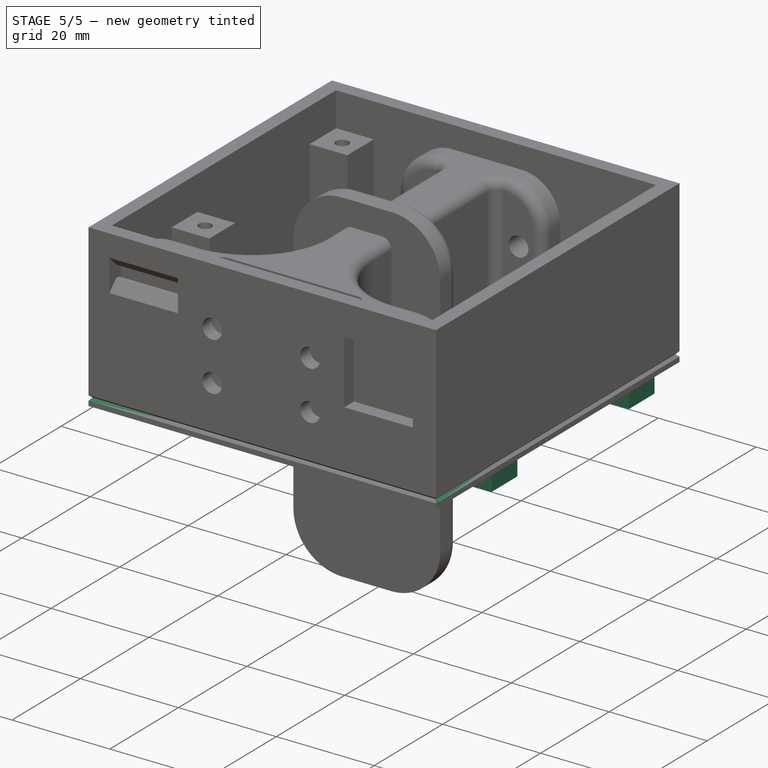
[diagram: stage 5 of 5 — iso view after this stage's code; geometry added in this stage tinted green]
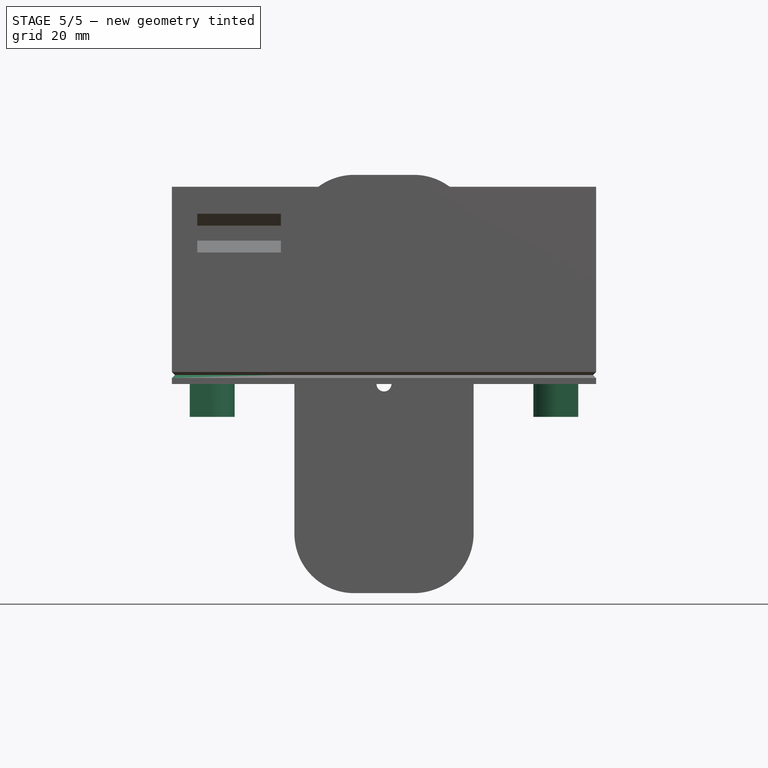
[diagram: stage 5 of 5 — front view after this stage's code; geometry added in this stage tinted green]
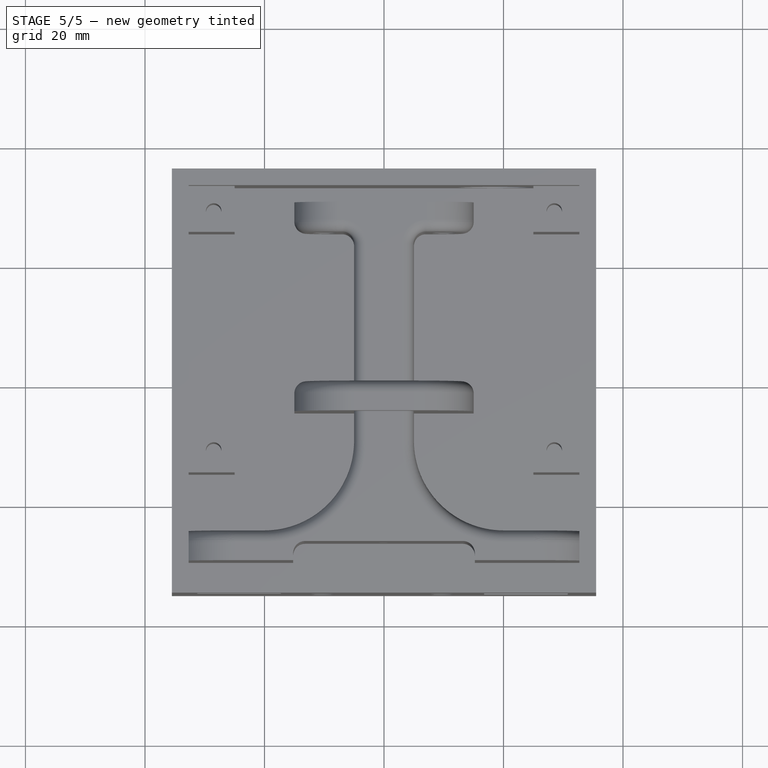
[diagram: stage 5 of 5 — top view after this stage's code; geometry added in this stage tinted green]
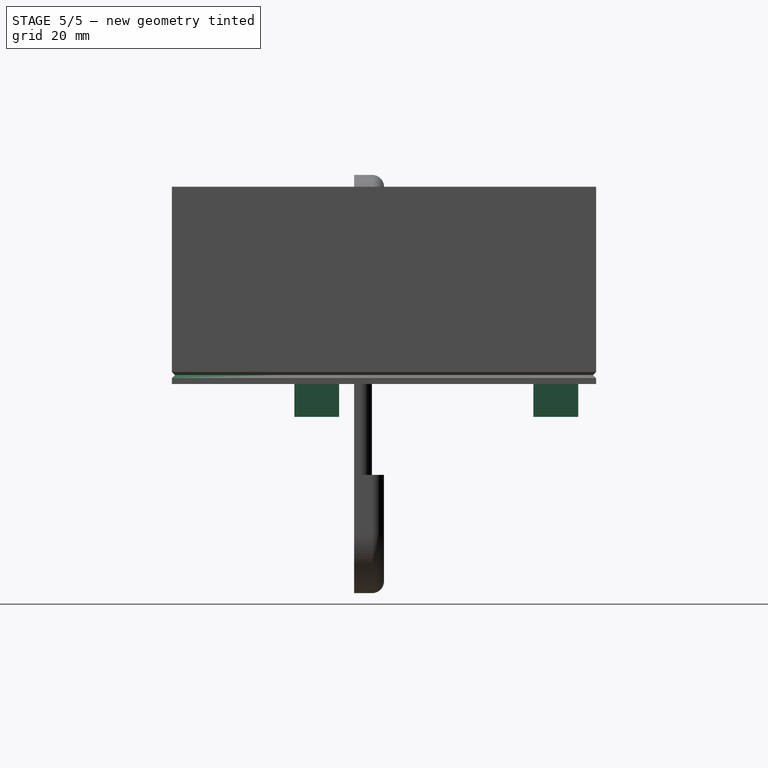
[diagram: stage 5 of 5 — right view after this stage's code; geometry added in this stage tinted green]
FEATURE [PartDesign::Chamfer] Chamfer
  Base = -> Pocket001 [Edge19,Edge21]
  BaseFeature = -> Pocket001
  Size = 2
FEATURE [Sketcher::SketchObject] Sketch007
  ExternalGeometry = -> [Chamfer]
  MapMode = 5
  Placement = pos=(0,0,3) rot=(0,0,1;0rad)
  Support = -> [Chamfer]
  sketch-geometry (4):
    g0: Circle CenterX=-28.5 CenterY=28.5 CenterZ=0 NormalX=0 NormalY=0 NormalZ=1 AngleXU=0 Radius=2
    g1: Circle CenterX=28.5 CenterY=28.5 CenterZ=0 NormalX=0 NormalY=0 NormalZ=1 AngleXU=0 Radius=2
    g2: Circle CenterX=28.5 CenterY=-11.5 CenterZ=0 NormalX=0 NormalY=0 NormalZ=1 AngleXU=0 Radius=2
    g3: Circle CenterX=-28.5 CenterY=-11.5 CenterZ=0 NormalX=0 NormalY=0 NormalZ=1 AngleXU=0 Radius=2
  constraints (12):
    c: Diameter(g1) = 4
    c: Diameter(g2) = 4
    c: Diameter(g0) = 4
    c: Diameter(g3) = 4
    c: Distance(g1,g-4) = 7
    c: Distance(g1,g-3) = 7
    c: Distance(g0,g-3) = 7
    c: Distance(g0,g-5) = 7
    c: Distance(g3,g-5) = 7
    c: Distance(g2,g-4) = 7
    c: Distance(g2,g-6) = 24
    c: Distance(g3,g-6) = 24
FEATURE [PartDesign::Pocket] Pocket007
  BaseFeature = -> Chamfer
  Length = 5
  Length2 = 100
  Profile = -> Sketch007
  Type = 0
FEATURE [Sketcher::SketchObject] Sketch008
  ExternalGeometry = -> [Pocket007]
  MapMode = 5
  Placement = pos=(0,0,0) rot=(1,0,0;3.14159rad)
  Support = -> [Pocket007]
  sketch-geometry (16):
    g0: LineSegment StartX=-32.5 StartY=15 StartZ=0 EndX=-25 EndY=15 EndZ=0
    g1: LineSegment StartX=-25 StartY=15 StartZ=0 EndX=-25 EndY=7.5 EndZ=0
    g2: LineSegment StartX=-25 StartY=7.5 StartZ=0 EndX=-32.5 EndY=7.5 EndZ=0
    g3: LineSegment StartX=-32.5 StartY=7.5 StartZ=0 EndX=-32.5 EndY=15 EndZ=0
    g4: LineSegment StartX=25 StartY=15 StartZ=0 EndX=32.5 EndY=15 EndZ=0
    g5: LineSegment StartX=32.5 StartY=15 StartZ=0 EndX=32.5 EndY=7.5 EndZ=0
    g6: LineSegment StartX=32.5 StartY=7.5 StartZ=0 EndX=25 EndY=7.5 EndZ=0
    g7: LineSegment StartX=25 StartY=7.5 StartZ=0 EndX=25 EndY=15 EndZ=0
    g8: LineSegment StartX=25 StartY=-25 StartZ=0 EndX=32.5 EndY=-25 EndZ=0
    g9: LineSegment StartX=32.5 StartY=-25 StartZ=0 EndX=32.5 EndY=-32.5 EndZ=0
    g10: LineSegment StartX=32.5 StartY=-32.5 StartZ=0 EndX=25 EndY=-32.5 EndZ=0
    g11: LineSegment StartX=25 StartY=-32.5 StartZ=0 EndX=25 EndY=-25 EndZ=0
    g12: LineSegment StartX=-32.5 StartY=-25 StartZ=0 EndX=-25 EndY=-25 EndZ=0
    g13: LineSegment StartX=-25 StartY=-25 StartZ=0 EndX=-25 EndY=-32.5 EndZ=0
    g14: LineSegment StartX=-25 StartY=-32.5 StartZ=0 EndX=-32.5 EndY=-32.5 EndZ=0
    g15: LineSegment StartX=-32.5 StartY=-32.5 StartZ=0 EndX=-32.5 EndY=-25 EndZ=0
  constraints (48):
    c: Coincident(g0,g1)
    c: Coincident(g1,g2)
    c: Coincident(g2,g3)
    c: Coincident(g3,g0)
    c: Horizontal(g0)
    c: Horizontal(g2)
    c: Vertical(g1)
    c: Vertical(g3)
    c: Coincident(g4,g5)
    c: Coincident(g5,g6)
    c: Coincident(g6,g7)
    c: Coincident(g7,g4)
    c: Horizontal(g4)
    c: Horizontal(g6)
    c: Vertical(g5)
    c: Vertical(g7)
    c: Coincident(g8,g9)
    c: Coincident(g9,g10)
    c: Coincident(g10,g11)
    c: Coincident(g11,g8)
    c: Horizontal(g8)
    c: Horizontal(g10)
    c: Vertical(g9)
    c: Vertical(g11)
    c: Coincident(g12,g13)
    c: Coincident(g13,g14)
    c: Coincident(g14,g15)
    c: Coincident(g15,g12)
    c: Horizontal(g12)
    c: Horizontal(g14)
    c: Vertical(g13)
    c: Vertical(g15)
    c: Distance(g4) = 7.5
    c: Distance(g7) = 7.5
    c: Distance(g8) = 7.5
    c: Distance(g11) = 7.5
    c: Distance(g13) = 7.5
    c: Distance(g12) = 7.5
    c: Distance(g0) = 7.5
    c: Distance(g1) = 7.5
    c: Distance(g4,g-3) = 3
    c: Distance(g8,g-3) = 3
    c: Distance(g12,g-6) = 3
    c: Distance(g2,g-6) = 3
    c: Distance(g14,g-4) = 3
    c: Distance(g10,g-4) = 3
    c: Distance(g4,g-5) = 20.5
    c: Distance(g0,g-5) = 20.5
FEATURE [PartDesign::Pad] Pad004
  BaseFeature = -> Pocket007
  Length = 5.5
  Length2 = 100
  Profile = -> Sketch008
  Type = 0
FEATURE [PartDesign::Pocket] Pocket008
  BaseFeature = -> Pad004
  Length = 7
  Length2 = 100
  Profile = -> Pad004 [Face20]
  Type = 0
FEATURE [PartDesign::Pocket] Pocket009
  BaseFeature = -> Pocket008
  Length = 7
  Length2 = 100
  Profile = -> Pocket008 [Face21]
  Type = 0
FEATURE [PartDesign::Pocket] Pocket010
  BaseFeature = -> Pocket009
  Length = 7
  Length2 = 100
  Profile = -> Pocket009 [Face17]
  Type = 0
FEATURE [PartDesign::Pocket] Pocket011
  BaseFeature = -> Pocket010
  Length = 7
  Length2 = 100
  Profile = -> Pocket010 [Face16]
  Type = 0
FEATURE [PartDesign::Fillet] Fillet
  Base = -> Pocket011 [Edge91,Edge87]
  BaseFeature = -> Pocket011
  Radius = 4
FEATURE [PartDesign::Chamfer] Chamfer002
  Base = -> Fillet [Edge40,Edge42,Edge44,Edge45]
  BaseFeature = -> Fillet
  Size = 2
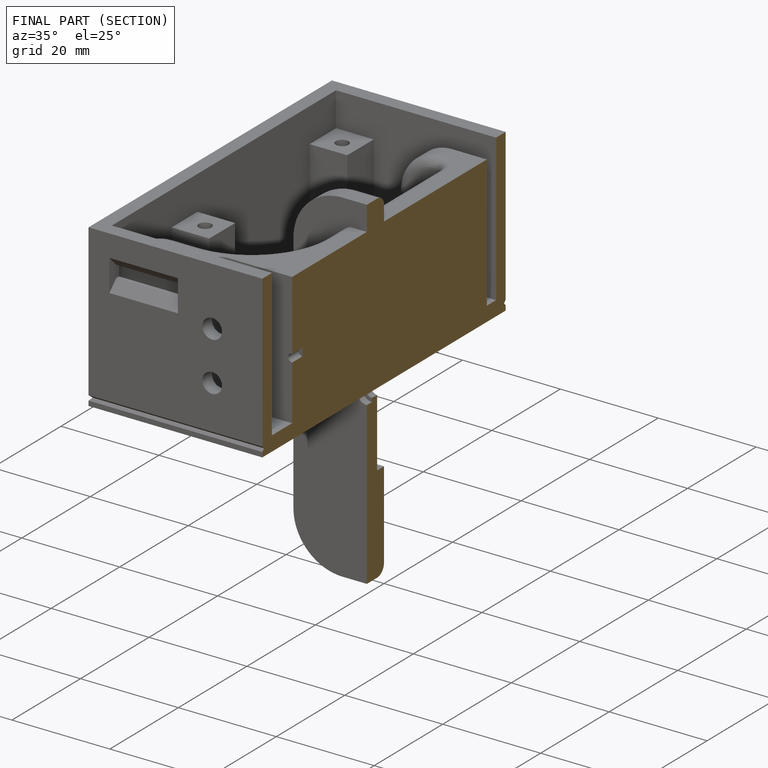
[diagram: finished part — half-section view (interior)]
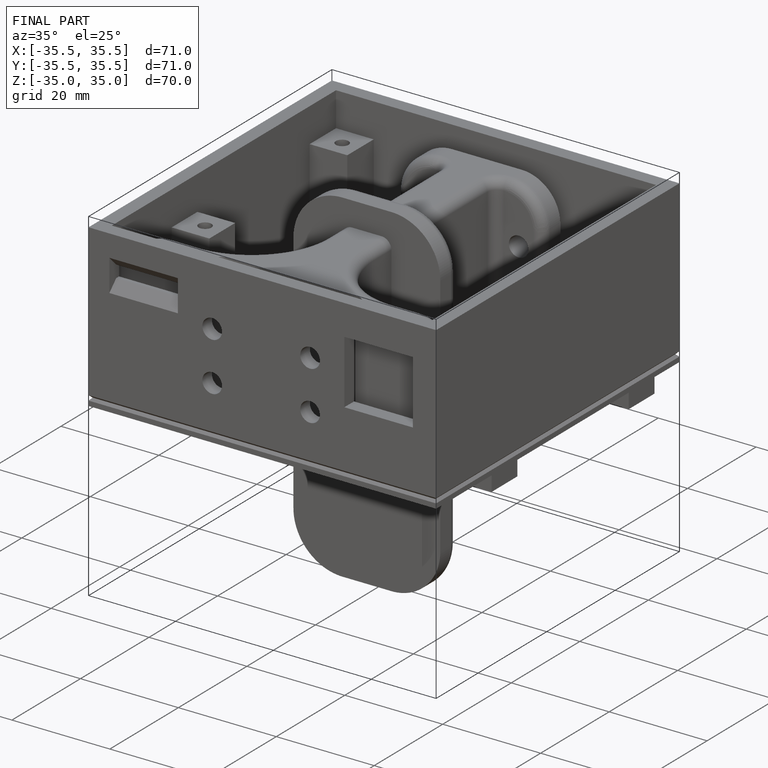
[diagram: finished part — iso view with bounding-box wireframe]
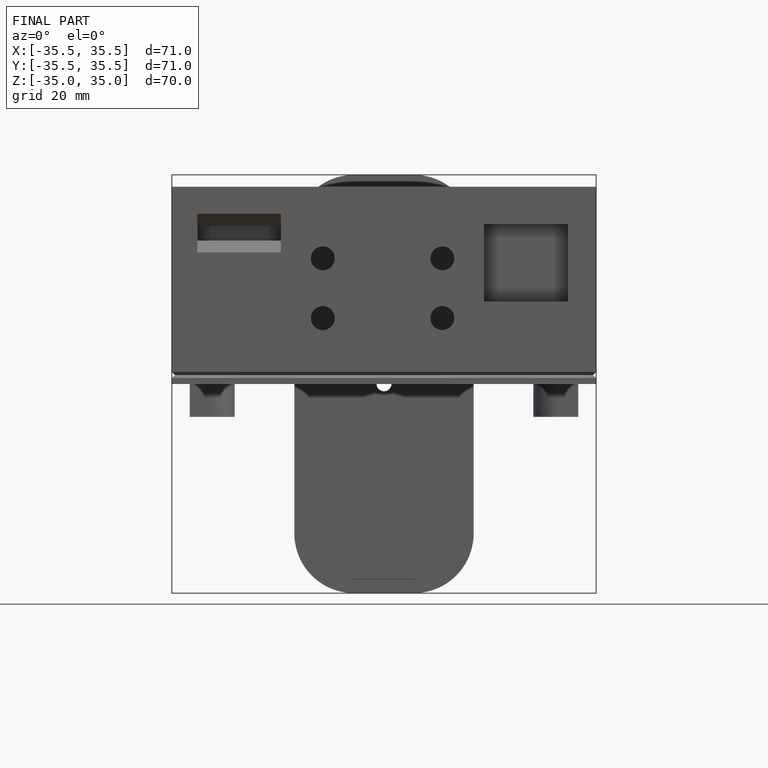
[diagram: finished part — front view with bounding-box wireframe]
